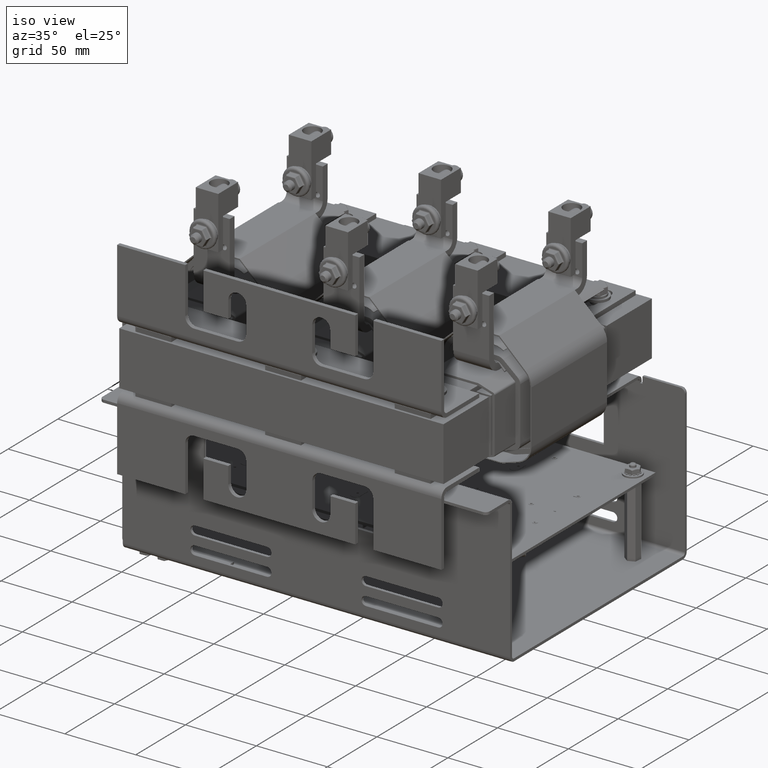
[diagram: clean part render]
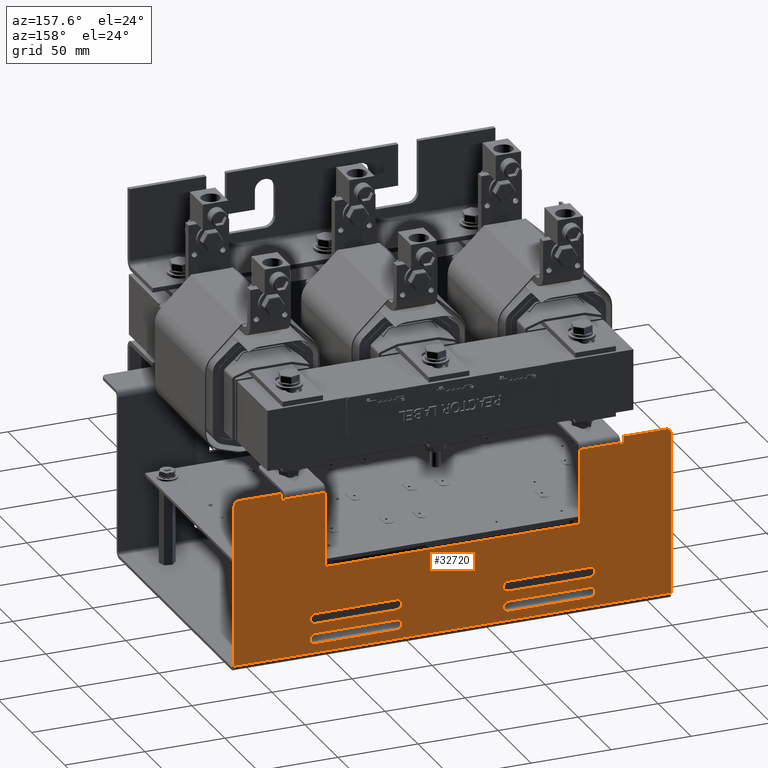
[diagram: tour spotlight — one face highlighted and labeled with its STEP entity id]
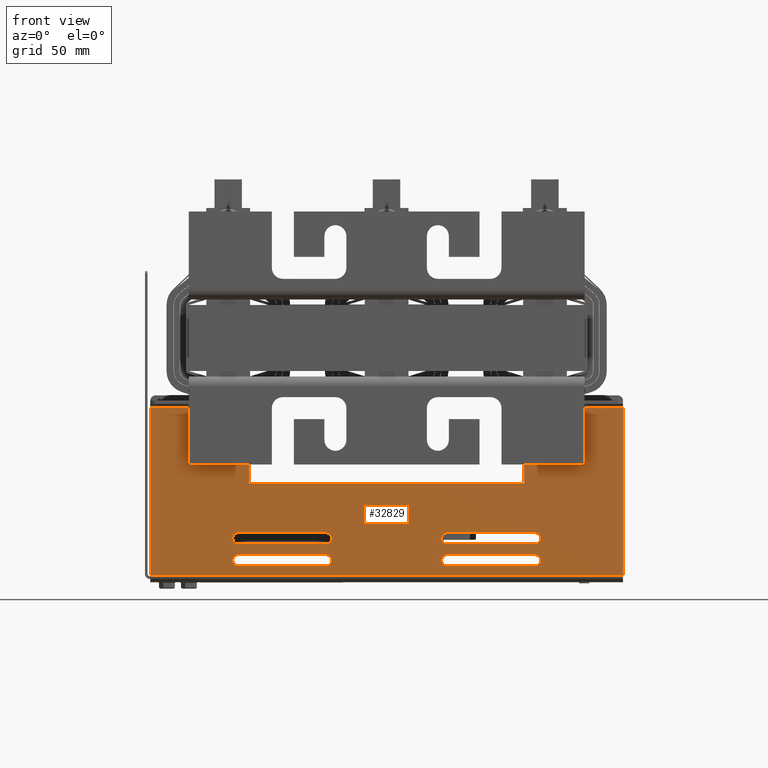
[diagram: tour spotlight — one face highlighted and labeled with its STEP entity id]
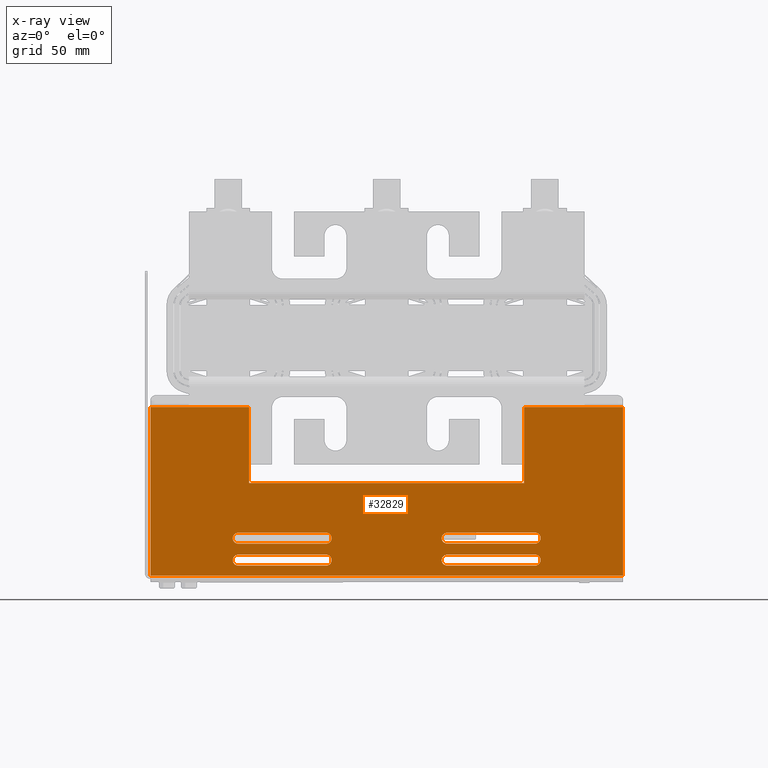
[diagram: x-ray of the same camera — body ghosted, this tour face saturated]
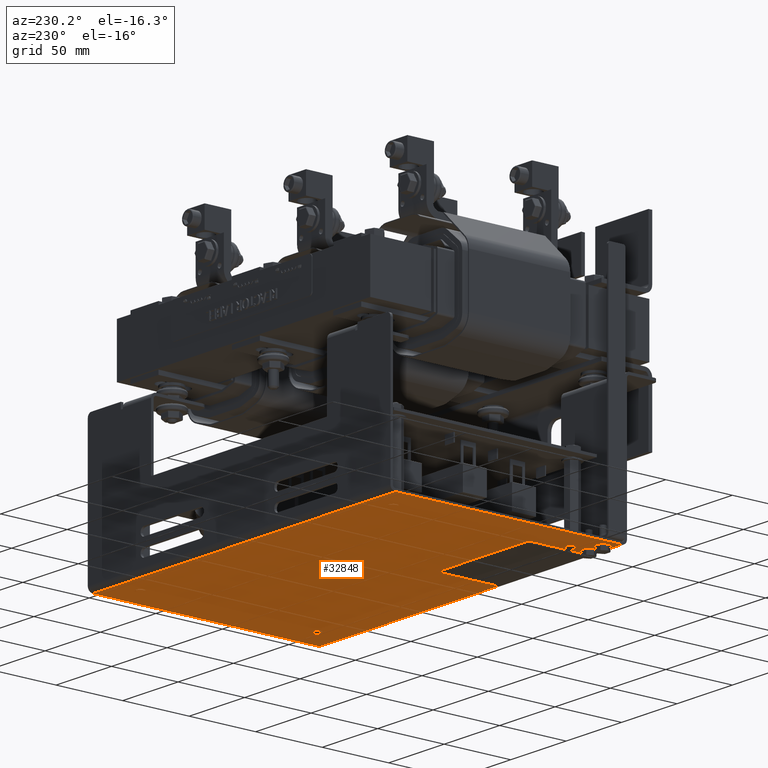
[diagram: tour spotlight — one face highlighted and labeled with its STEP entity id]
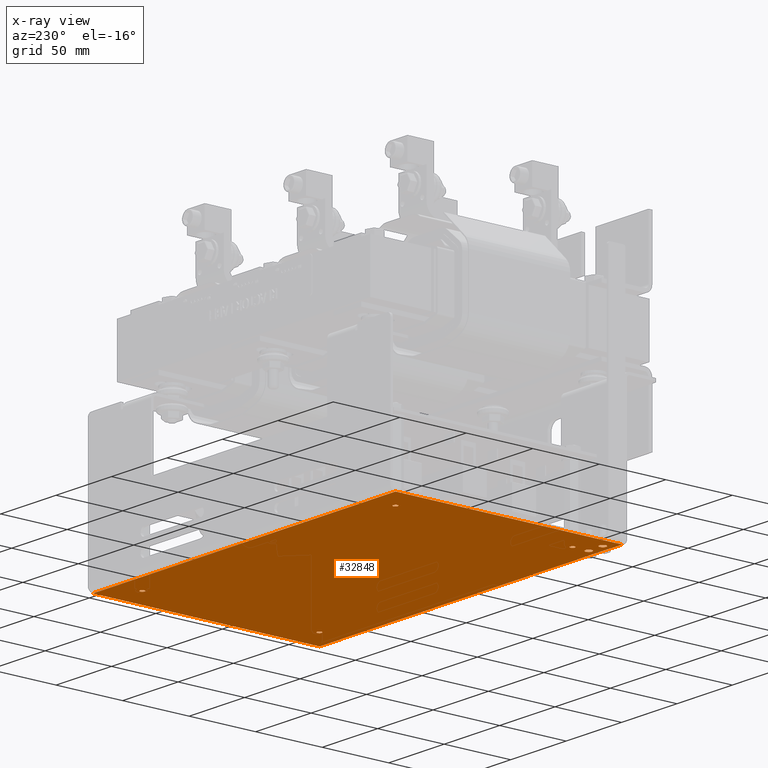
[diagram: x-ray of the same camera — body ghosted, this tour face saturated]
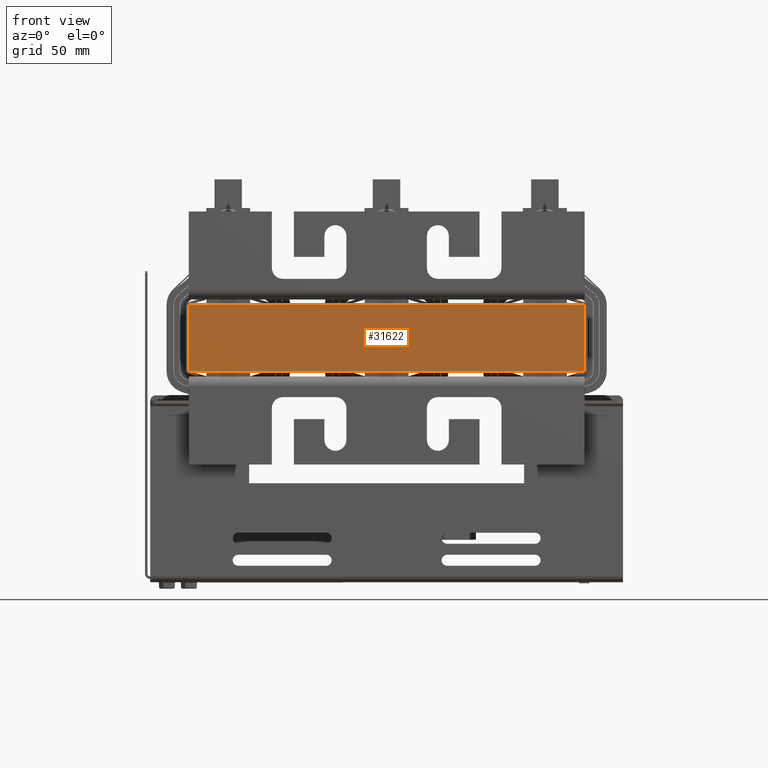
[diagram: tour spotlight — one face highlighted and labeled with its STEP entity id]
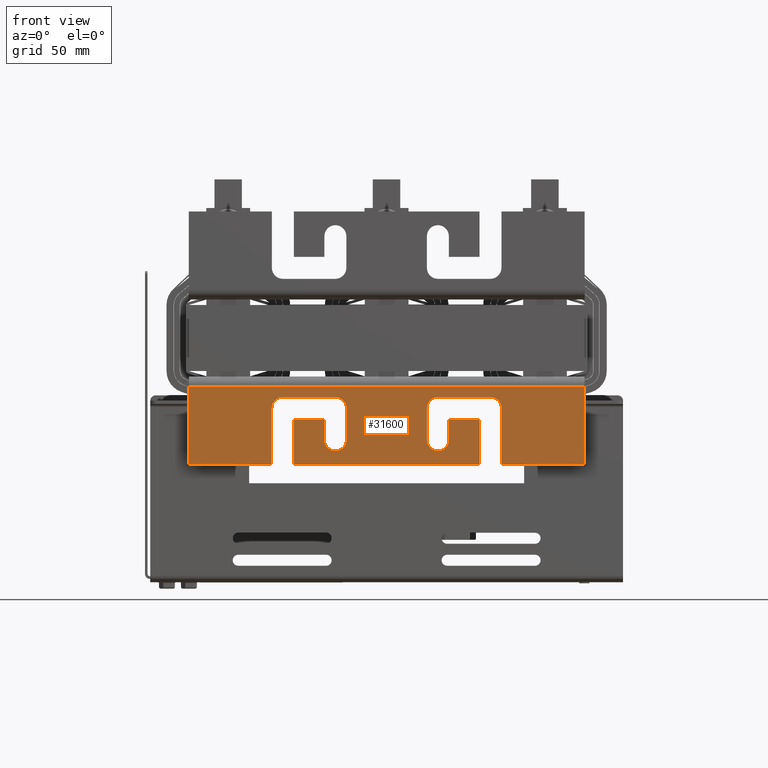
[diagram: tour spotlight — one face highlighted and labeled with its STEP entity id]
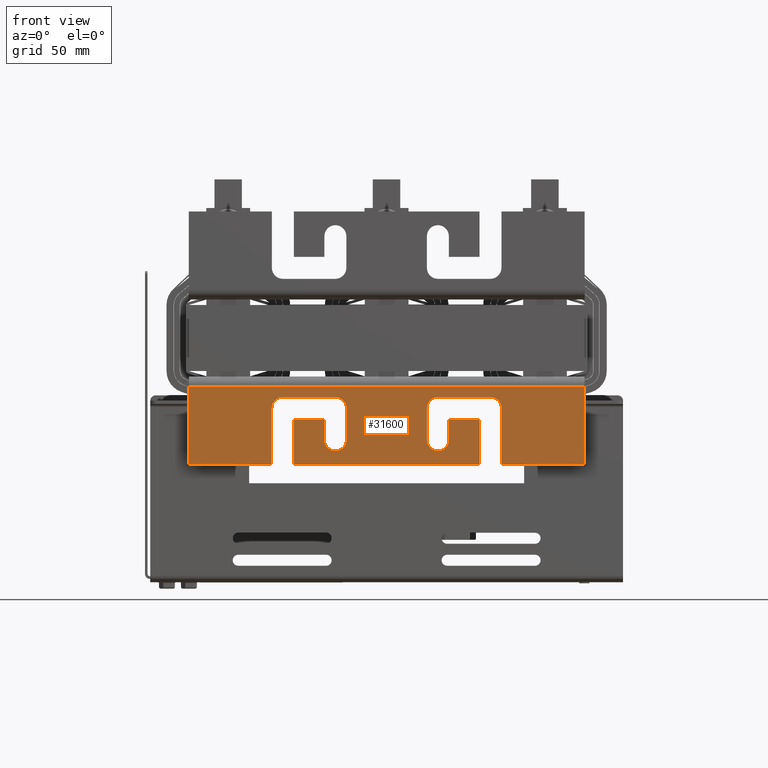
[diagram: tour spotlight — one face highlighted and labeled with its STEP entity id]
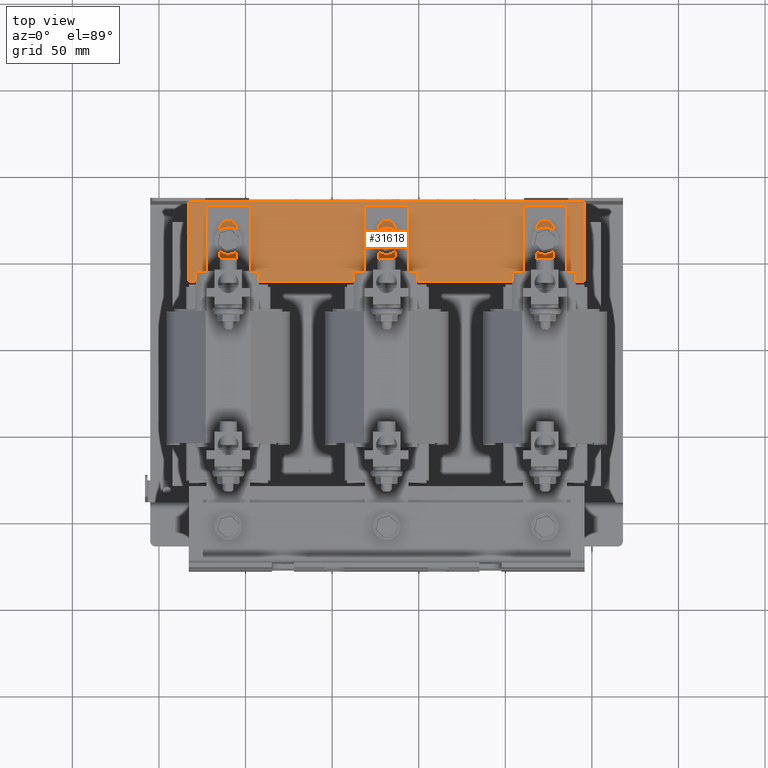
[diagram: tour spotlight — one face highlighted and labeled with its STEP entity id]
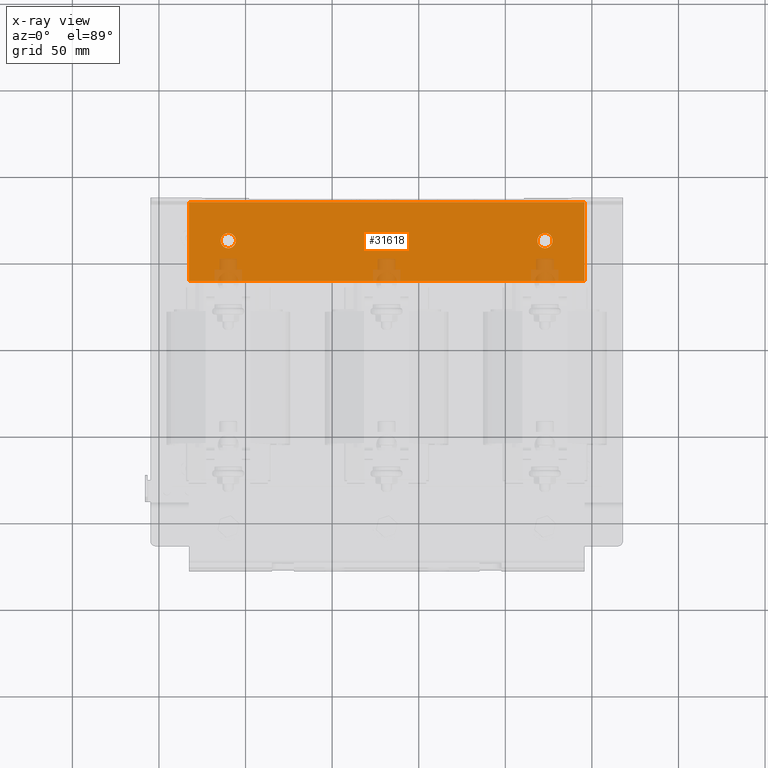
[diagram: x-ray of the same camera — body ghosted, this tour face saturated]
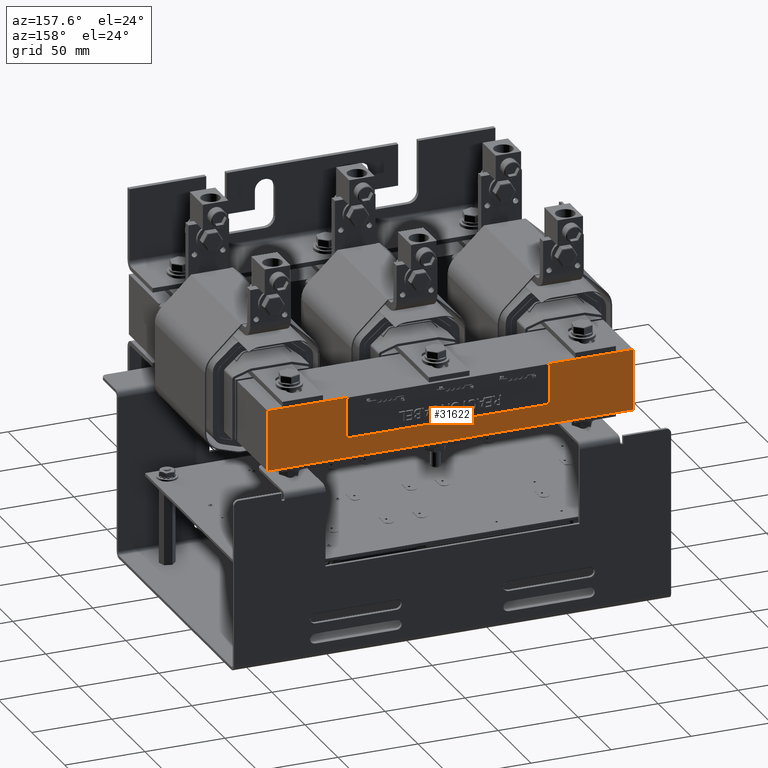
[diagram: tour spotlight — one face highlighted and labeled with its STEP entity id]
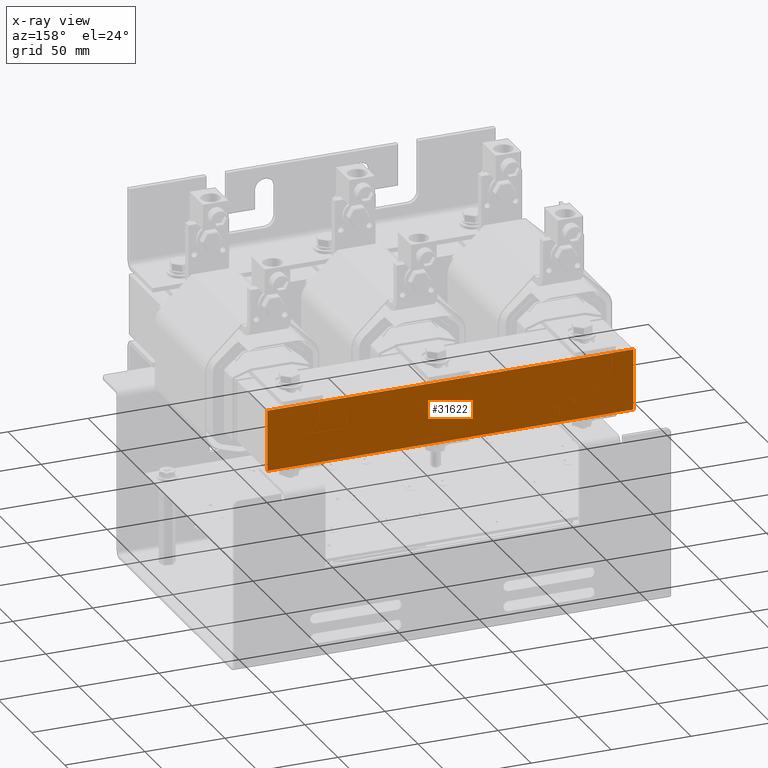
[diagram: x-ray of the same camera — body ghosted, this tour face saturated]
A machine part: a face-by-face anatomy tour. The part has 4435 B-rep faces; the first image is the clean iso view, then the 8 largest visible faces are spotlighted one at a time (largest first), each with its STEP entity span.

Face 1 — auxiliary view, entity #32720. In plain terms, the highlighted planar face has unit normal (-0, -1, -0).
Definition (entity closure, byte-faithful):
#1804=FACE_BOUND('',#6677,.T.);
#1805=FACE_BOUND('',#6678,.T.);
#1806=FACE_BOUND('',#6679,.T.);
#1807=FACE_BOUND('',#6680,.T.);
#2547=CIRCLE('',#35821,0.125);
#2557=CIRCLE('',#35834,0.125);
#2558=CIRCLE('',#35837,0.125);
#2559=CIRCLE('',#35838,0.125);
#2560=CIRCLE('',#35839,0.125);
#2561=CIRCLE('',#35840,0.125);
#2562=CIRCLE('',#35841,0.125);
#2563=CIRCLE('',#35842,0.125);
#2564=CIRCLE('',#35843,0.125);
#2565=CIRCLE('',#35844,0.125);
#4791=FACE_OUTER_BOUND('',#6676,.T.);
#6676=EDGE_LOOP('',(#27455,#27456,#27457,#27458,#27459,#27460,#27461,#27462,
#27463,#27464,#27465,#27466,#27467,#27468,#27469,#27470,#27471,#27472));
#6677=EDGE_LOOP('',(#27473,#27474,#27475,#27476));
#6678=EDGE_LOOP('',(#27477,#27478,#27479,#27480));
#6679=EDGE_LOOP('',(#27481,#27482,#27483,#27484));
#6680=EDGE_LOOP('',(#27485,#27486,#27487,#27488));
#9583=LINE('',#55222,#12673);
#9609=LINE('',#55295,#12699);
#9611=LINE('',#55298,#12701);
#9612=LINE('',#55300,#12702);
#9613=LINE('',#55302,#12703);
#9614=LINE('',#55304,#12704);
#9615=LINE('',#55306,#12705);
#9616=LINE('',#55308,#12706);
#9617=LINE('',#55310,#12707);
#9618=LINE('',#55312,#12708);
#9619=LINE('',#55314,#12709);
#9620=LINE('',#55316,#12710);
#9621=LINE('',#55318,#12711);
#9622=LINE('',#55320,#12712);
#9623=LINE('',#55322,#12713);
#9624=LINE('',#55323,#12714);
#9625=LINE('',#55326,#12715);
#9626=LINE('',#55330,#12716);
#9627=LINE('',#55336,#12717);
#9628=LINE('',#55339,#12718);
#9629=LINE('',#55344,#12719);
#9630=LINE('',#55347,#12720);
#9631=LINE('',#55352,#12721);
#9632=LINE('',#55355,#12722);
#12673=VECTOR('',#42546,0.393700787401575);
#12699=VECTOR('',#42598,0.393700787401575);
#12701=VECTOR('',#42602,0.393700787401575);
#12702=VECTOR('',#42603,0.393700787401575);
#12703=VECTOR('',#42604,0.393700787401575);
#12704=VECTOR('',#42605,0.393700787401575);
#12705=VECTOR('',#42606,0.393700787401575);
#12706=VECTOR('',#42607,0.393700787401575);
#12707=VECTOR('',#42608,0.393700787401575);
#12708=VECTOR('',#42609,0.393700787401575);
#12709=VECTOR('',#42610,0.393700787401575);
#12710=VECTOR('',#42611,0.393700787401575);
#12711=VECTOR('',#42612,0.393700787401575);
#12712=VECTOR('',#42613,0.393700787401575);
#12713=VECTOR('',#42614,0.393700787401575);
#12714=VECTOR('',#42615,0.393700787401575);
#12715=VECTOR('',#42616,0.393700787401575);
#12716=VECTOR('',#42619,0.393700787401575);
#12717=VECTOR('',#42624,0.393700787401575);
#12718=VECTOR('',#42627,0.393700787401575);
#12719=VECTOR('',#42630,0.393700787401575);
#12720=VECTOR('',#42633,0.393700787401575);
#12721=VECTOR('',#42636,0.393700787401575);
#12722=VECTOR('',#42639,0.393700787401575);
#15671=VERTEX_POINT('',#55212);
#15672=VERTEX_POINT('',#55214);
#15674=VERTEX_POINT('',#55220);
#15706=VERTEX_POINT('',#55288);
#15707=VERTEX_POINT('',#55290);
#15708=VERTEX_POINT('',#55294);
#15709=VERTEX_POINT('',#55299);
#15710=VERTEX_POINT('',#55301);
#15711=VERTEX_POINT('',#55303);
#15712=VERTEX_POINT('',#55305);
#15713=VERTEX_POINT('',#55307);
#15714=VERTEX_POINT('',#55309);
#15715=VERTEX_POINT('',#55311);
#15716=VERTEX_POINT('',#55313);
#15717=VERTEX_POINT('',#55315);
#15718=VERTEX_POINT('',#55317);
#15719=VERTEX_POINT('',#55319);
#15720=VERTEX_POINT('',#55321);
#15721=VERTEX_POINT('',#55324);
#15722=VERTEX_POINT('',#55325);
#15723=VERTEX_POINT('',#55327);
#15724=VERTEX_POINT('',#55329);
#15725=VERTEX_POINT('',#55332);
#15726=VERTEX_POINT('',#55333);
#15727=VERTEX_POINT('',#55335);
#15728=VERTEX_POINT('',#55337);
#15729=VERTEX_POINT('',#55340);
#15730=VERTEX_POINT('',#55341);
#15731=VERTEX_POINT('',#55343);
#15732=VERTEX_POINT('',#55345);
#15733=VERTEX_POINT('',#55348);
#15734=VERTEX_POINT('',#55349);
#15735=VERTEX_POINT('',#55351);
#15736=VERTEX_POINT('',#55353);
#19733=EDGE_CURVE('',#15671,#15672,#2547,.T.);
#19737=EDGE_CURVE('',#15674,#15671,#9583,.T.);
#19771=EDGE_CURVE('',#15706,#15707,#2557,.T.);
#19773=EDGE_CURVE('',#15708,#15707,#9609,.T.);
#19775=EDGE_CURVE('',#15674,#15708,#9611,.T.);
#19776=EDGE_CURVE('',#15706,#15709,#9612,.T.);
#19777=EDGE_CURVE('',#15709,#15710,#9613,.T.);
#19778=EDGE_CURVE('',#15710,#15711,#9614,.T.);
#19779=EDGE_CURVE('',#15711,#15712,#9615,.T.);
#19780=EDGE_CURVE('',#15712,#15713,#9616,.T.);
#19781=EDGE_CURVE('',#15713,#15714,#9617,.T.);
#19782=EDGE_CURVE('',#15714,#15715,#9618,.T.);
#19783=EDGE_CURVE('',#15715,#15716,#9619,.T.);
#19784=EDGE_CURVE('',#15716,#15717,#9620,.T.);
#19785=EDGE_CURVE('',#15717,#15718,#9621,.T.);
#19786=EDGE_CURVE('',#15718,#15719,#9622,.T.);
#19787=EDGE_CURVE('',#15719,#15720,#9623,.T.);
#19788=EDGE_CURVE('',#15720,#15672,#9624,.T.);
#19789=EDGE_CURVE('',#15721,#15722,#9625,.T.);
#19790=EDGE_CURVE('',#15722,#15723,#2558,.T.);
#19791=EDGE_CURVE('',#15723,#15724,#9626,.T.);
#19792=EDGE_CURVE('',#15724,#15721,#2559,.T.);
#19793=EDGE_CURVE('',#15725,#15726,#2560,.T.);
#19794=EDGE_CURVE('',#15726,#15727,#9627,.T.);
#19795=EDGE_CURVE('',#15727,#15728,#2561,.T.);
#19796=EDGE_CURVE('',#15728,#15725,#9628,.T.);
#19797=EDGE_CURVE('',#15729,#15730,#2562,.T.);
#19798=EDGE_CURVE('',#15730,#15731,#9629,.T.);
#19799=EDGE_CURVE('',#15731,#15732,#2563,.T.);
#19800=EDGE_CURVE('',#15732,#15729,#9630,.T.);
#19801=EDGE_CURVE('',#15733,#15734,#2564,.T.);
#19802=EDGE_CURVE('',#15734,#15735,#9631,.T.);
#19803=EDGE_CURVE('',#15735,#15736,#2565,.T.);
#19804=EDGE_CURVE('',#15736,#15733,#9632,.T.);
#27455=ORIENTED_EDGE('',*,*,#19733,.F.);
#27456=ORIENTED_EDGE('',*,*,#19737,.F.);
#27457=ORIENTED_EDGE('',*,*,#19775,.T.);
#27458=ORIENTED_EDGE('',*,*,#19773,.T.);
#27459=ORIENTED_EDGE('',*,*,#19771,.F.);
#27460=ORIENTED_EDGE('',*,*,#19776,.T.);
#27461=ORIENTED_EDGE('',*,*,#19777,.T.);
#27462=ORIENTED_EDGE('',*,*,#19778,.T.);
#27463=ORIENTED_EDGE('',*,*,#19779,.T.);
#27464=ORIENTED_EDGE('',*,*,#19780,.T.);
#27465=ORIENTED_EDGE('',*,*,#19781,.T.);
#27466=ORIENTED_EDGE('',*,*,#19782,.T.);
#27467=ORIENTED_EDGE('',*,*,#19783,.T.);
#27468=ORIENTED_EDGE('',*,*,#19784,.T.);
#27469=ORIENTED_EDGE('',*,*,#19785,.T.);
#27470=ORIENTED_EDGE('',*,*,#19786,.T.);
#27471=ORIENTED_EDGE('',*,*,#19787,.T.);
#27472=ORIENTED_EDGE('',*,*,#19788,.T.);
#27473=ORIENTED_EDGE('',*,*,#19789,.T.);
#27474=ORIENTED_EDGE('',*,*,#19790,.T.);
#27475=ORIENTED_EDGE('',*,*,#19791,.T.);
#27476=ORIENTED_EDGE('',*,*,#19792,.T.);
#27477=ORIENTED_EDGE('',*,*,#19793,.T.);
#27478=ORIENTED_EDGE('',*,*,#19794,.T.);
#27479=ORIENTED_EDGE('',*,*,#19795,.T.);
#27480=ORIENTED_EDGE('',*,*,#19796,.T.);
#27481=ORIENTED_EDGE('',*,*,#19797,.T.);
#27482=ORIENTED_EDGE('',*,*,#19798,.T.);
#27483=ORIENTED_EDGE('',*,*,#19799,.T.);
#27484=ORIENTED_EDGE('',*,*,#19800,.T.);
#27485=ORIENTED_EDGE('',*,*,#19801,.T.);
#27486=ORIENTED_EDGE('',*,*,#19802,.T.);
#27487=ORIENTED_EDGE('',*,*,#19803,.T.);
#27488=ORIENTED_EDGE('',*,*,#19804,.T.);
#31212=PLANE('',#35836);
#32720=ADVANCED_FACE('',(#4791,#1804,#1805,#1806,#1807),#31212,.F.);
#35821=AXIS2_PLACEMENT_3D('',#55215,#42539,#42540);
#35834=AXIS2_PLACEMENT_3D('',#55291,#42593,#42594);
#35836=AXIS2_PLACEMENT_3D('',#55297,#42600,#42601);
#35837=AXIS2_PLACEMENT_3D('',#55328,#42617,#42618);
#35838=AXIS2_PLACEMENT_3D('',#55331,#42620,#42621);
#35839=AXIS2_PLACEMENT_3D('',#55334,#42622,#42623);
#35840=AXIS2_PLACEMENT_3D('',#55338,#42625,#42626);
#35841=AXIS2_PLACEMENT_3D('',#55342,#42628,#42629);
#35842=AXIS2_PLACEMENT_3D('',#55346,#42631,#42632);
#35843=AXIS2_PLACEMENT_3D('',#55350,#42634,#42635);
#35844=AXIS2_PLACEMENT_3D('',#55354,#42637,#42638);
#42539=DIRECTION('center_axis',(-5.6703326251689E-19,-1.,-8.8564056095224E-15));
#42540=DIRECTION('ref_axis',(0.707106781186551,-1.58245539142931E-14,0.707106781186544));
#42546=DIRECTION('',(1.30112202116848E-16,-8.88178419700125E-15,1.));
#42593=DIRECTION('center_axis',(-5.6703326251689E-19,-1.,-8.8564056095224E-15));
#42594=DIRECTION('ref_axis',(-0.707106781186549,-1.58245539142932E-14,0.707106781186546));
#42598=DIRECTION('',(-1.66709719571992E-14,-8.88178419700126E-15,1.));
#42600=DIRECTION('center_axis',(-5.6703326251689E-19,-1.,-8.8564056095224E-15));
#42601=DIRECTION('ref_axis',(1.,-5.67033262515731E-19,-1.30112202116848E-16));
#42602=DIRECTION('',(-1.,5.6703326251689E-19,1.15266297230252E-30));
#42603=DIRECTION('',(1.,1.15863945454336E-30,-1.30112202116848E-16));
#42604=DIRECTION('',(0.,8.8564056095224E-15,-1.));
#42605=DIRECTION('',(1.,-5.6703326251689E-19,-5.30865411272029E-33));
#42606=DIRECTION('',(0.,-8.8564056095224E-15,1.));
#42607=DIRECTION('',(1.,-5.6703326251689E-19,-5.30865411272029E-33));
#42608=DIRECTION('',(3.49676543189026E-16,8.8564056095224E-15,-1.));
#42609=DIRECTION('',(1.,-5.67033262517881E-19,1.11896493820488E-16));
#42610=DIRECTION('',(8.5944172051029E-49,-8.8564056095224E-15,1.));
#42611=DIRECTION('',(1.,-5.6703326251689E-19,-1.31002146628546E-29));
#42612=DIRECTION('',(0.,8.8564056095224E-15,-1.));
#42613=DIRECTION('',(1.,-5.6703326251689E-19,-5.30865411272029E-33));
#42614=DIRECTION('',(0.,-8.8564056095224E-15,1.));
#42615=DIRECTION('',(1.,1.15863945454336E-30,-1.30112202116848E-16));
#42616=DIRECTION('',(-1.,5.67033262517106E-19,-2.44773580232318E-17));
#42617=DIRECTION('center_axis',(-5.6703326251689E-19,-1.,-8.8564056095224E-15));
#42618=DIRECTION('ref_axis',(-1.11896493820488E-16,-8.85372494836339E-15,
1.));
#42619=DIRECTION('',(1.,-5.67033262509364E-19,-8.49713999949332E-16));
#42620=DIRECTION('center_axis',(-5.6703326251689E-19,-1.,-8.8564056095224E-15));
#42621=DIRECTION('ref_axis',(1.11896493820488E-16,8.85372494836339E-15,
-1.));
#42622=DIRECTION('center_axis',(-5.6703326251689E-19,-1.,-8.8564056095224E-15));
#42623=DIRECTION('ref_axis',(-1.11896493820488E-16,-8.85372494836339E-15,
1.));
#42624=DIRECTION('',(1.,-5.67033262517106E-19,2.44773580232318E-17));
#42625=DIRECTION('center_axis',(-5.6703326251689E-19,-1.,-8.8564056095224E-15));
#42626=DIRECTION('ref_axis',(1.11896493820488E-16,8.85372494836339E-15,
-1.));
#42627=DIRECTION('',(-1.,5.67033262515558E-19,1.50360913571281E-16));
#42628=DIRECTION('center_axis',(-5.6703326251689E-19,-1.,-8.8564056095224E-15));
#42629=DIRECTION('ref_axis',(-1.11896493820488E-16,-8.8574017444383E-15,
1.));
#42630=DIRECTION('',(1.,-5.67033262517881E-19,1.11896493820488E-16));
#42631=DIRECTION('center_axis',(-5.6703326251689E-19,-1.,-8.8564056095224E-15));
#42632=DIRECTION('ref_axis',(1.11896493820488E-16,8.8574017444383E-15,-1.));
#42633=DIRECTION('',(-1.,5.67033262517881E-19,-1.11896493820488E-16));
#42634=DIRECTION('center_axis',(-5.6703326251689E-19,-1.,-8.8564056095224E-15));
#42635=DIRECTION('ref_axis',(-1.11896493820488E-16,-8.8574017444383E-15,
1.));
#42636=DIRECTION('',(1.,-5.67033262516332E-19,-6.29417777740246E-17));
#42637=DIRECTION('center_axis',(-5.6703326251689E-19,-1.,-8.8564056095224E-15));
#42638=DIRECTION('ref_axis',(1.11896493820488E-16,8.8574017444383E-15,-1.));
#42639=DIRECTION('',(-1.,5.67033262514784E-19,2.37780049368538E-16));
#55212=CARTESIAN_POINT('',(10.75,6.99999999999997,4.125));
#55214=CARTESIAN_POINT('',(10.625,6.99999999999996,4.25));
#55215=CARTESIAN_POINT('Origin',(10.625,6.99999999999997,4.125));
#55220=CARTESIAN_POINT('',(10.75,7.,0.1494));
#55222=CARTESIAN_POINT('',(10.75,7.,-0.019567419280674));
#55288=CARTESIAN_POINT('',(0.124999999999995,6.99999999999996,4.25));
#55290=CARTESIAN_POINT('',(-7.16799472386219E-14,6.99999999999997,4.125));
#55291=CARTESIAN_POINT('Origin',(0.124999999999995,6.99999999999996,4.125));
#55294=CARTESIAN_POINT('',(-5.40283112558079E-15,7.,0.149400000000002));
#55295=CARTESIAN_POINT('',(-2.58598001707232E-15,7.,-0.0195674192806754));
#55297=CARTESIAN_POINT('Origin',(5.375,6.99999999999998,2.11521629035966));
#55298=CARTESIAN_POINT('',(5.375,7.,0.149400000000002));
#55299=CARTESIAN_POINT('',(1.17529999999999,6.99999999999996,4.25));
#55300=CARTESIAN_POINT('',(-2.39144049161635E-15,6.99999999999996,4.25));
#55301=CARTESIAN_POINT('',(1.17529999999999,6.99999999999996,4.06325));
#55302=CARTESIAN_POINT('',(1.17529999999999,6.99999999999997,3.08923314517983));
#55303=CARTESIAN_POINT('',(1.24999999999999,6.99999999999996,4.06325));
#55304=CARTESIAN_POINT('',(3.3125,6.99999999999997,4.06325));
#55305=CARTESIAN_POINT('',(1.24999999999999,6.99999999999996,4.1006));
#55306=CARTESIAN_POINT('',(1.24999999999999,6.99999999999997,3.11260814517983));
#55307=CARTESIAN_POINT('',(2.25,6.99999999999996,4.1006));
#55308=CARTESIAN_POINT('',(3.8125,6.99999999999996,4.1006));
#55309=CARTESIAN_POINT('',(2.25,6.99999999999998,2.25));
#55310=CARTESIAN_POINT('',(2.25,6.99999999999998,2.18260814517986));
#55311=CARTESIAN_POINT('',(8.5,6.99999999999998,2.25));
#55312=CARTESIAN_POINT('',(6.9375,6.99999999999998,2.25));
#55313=CARTESIAN_POINT('',(8.5,6.99999999999996,4.1006));
#55314=CARTESIAN_POINT('',(8.5,6.99999999999997,3.18260814517986));
#55315=CARTESIAN_POINT('',(9.5,6.99999999999997,4.1006));
#55316=CARTESIAN_POINT('',(7.4375,6.99999999999996,4.1006));
#55317=CARTESIAN_POINT('',(9.5,6.99999999999997,4.06325));
#55318=CARTESIAN_POINT('',(9.5,6.99999999999997,3.08923314517983));
#55319=CARTESIAN_POINT('',(9.5747,6.99999999999997,4.06325));
#55320=CARTESIAN_POINT('',(7.47485,6.99999999999997,4.06325));
#55321=CARTESIAN_POINT('',(9.5747,6.99999999999996,4.25));
#55322=CARTESIAN_POINT('',(9.5747,6.99999999999997,3.11260814517983));
#55323=CARTESIAN_POINT('',(-2.39144049161635E-15,6.99999999999996,4.25));
#55324=CARTESIAN_POINT('',(8.75,6.99999999999999,1.125));
#55325=CARTESIAN_POINT('',(6.75,6.99999999999999,1.125));
#55326=CARTESIAN_POINT('',(7.0625,6.99999999999999,1.125));
#55327=CARTESIAN_POINT('',(6.75,6.99999999999999,0.875000000000001));
#55328=CARTESIAN_POINT('Origin',(6.75,6.99999999999999,1.));
#55329=CARTESIAN_POINT('',(8.75,6.99999999999999,0.874999999999999));
#55330=CARTESIAN_POINT('',(6.0625,6.99999999999999,0.875000000000001));
#55331=CARTESIAN_POINT('Origin',(8.75,6.99999999999999,1.));
#55332=CARTESIAN_POINT('',(2.00002098429182,6.99999999999999,1.12499999955966));
#55333=CARTESIAN_POINT('',(2.00002098429182,6.99999999999999,0.87499999955966));
#55334=CARTESIAN_POINT('Origin',(2.00002098429182,6.99999999999999,0.99999999955966));
#55335=CARTESIAN_POINT('',(4.00002098429182,6.99999999999999,0.87499999955966));
#55336=CARTESIAN_POINT('',(3.68751049214591,6.99999999999999,0.87499999955966));
#55337=CARTESIAN_POINT('',(4.00002098429182,6.99999999999999,1.12499999955966));
#55338=CARTESIAN_POINT('Origin',(4.00002098429182,6.99999999999999,0.99999999955966));
#55339=CARTESIAN_POINT('',(4.68751049214591,6.99999999999999,1.12499999955966));
#55340=CARTESIAN_POINT('',(1.99999999999999,7.,0.625));
#55341=CARTESIAN_POINT('',(2.,7.,0.375));
#55342=CARTESIAN_POINT('Origin',(1.99999999999999,7.,0.5));
#55343=CARTESIAN_POINT('',(4.,7.,0.375000000000001));
#55344=CARTESIAN_POINT('',(3.6875,7.,0.375));
#55345=CARTESIAN_POINT('',(4.,7.,0.625));
#55346=CARTESIAN_POINT('Origin',(4.,7.,0.500000000000001));
#55347=CARTESIAN_POINT('',(4.6875,7.,0.625000000000001));
#55348=CARTESIAN_POINT('',(6.75,7.,0.625000000000001));
#55349=CARTESIAN_POINT('',(6.75,7.,0.375000000000001));
#55350=CARTESIAN_POINT('Origin',(6.75,7.,0.500000000000001));
#55351=CARTESIAN_POINT('',(8.75,7.,0.375000000000001));
#55352=CARTESIAN_POINT('',(6.0625,7.,0.375000000000001));
#55353=CARTESIAN_POINT('',(8.75,7.,0.625));
#55354=CARTESIAN_POINT('Origin',(8.75,7.,0.500000000000001));
#55355=CARTESIAN_POINT('',(7.0625,7.,0.625000000000001));

Face 2 — front view, entity #32829. An x-ray twin of the same camera follows (body ghosted, this face saturated) — the face is partly hidden behind the body. In plain terms, the highlighted planar face has unit normal (0, 1, -0).
Definition (entity closure, byte-faithful):
#1812=FACE_BOUND('',#6794,.T.);
#1813=FACE_BOUND('',#6795,.T.);
#1814=FACE_BOUND('',#6796,.T.);
#1815=FACE_BOUND('',#6797,.T.);
#2587=CIRCLE('',#35887,0.125);
#2589=CIRCLE('',#35894,0.125);
#2591=CIRCLE('',#35899,0.125);
#2593=CIRCLE('',#35906,0.125);
#2595=CIRCLE('',#35911,0.125);
#2597=CIRCLE('',#35918,0.125);
#2599=CIRCLE('',#35925,0.125);
#2601=CIRCLE('',#35928,0.125);
#4900=FACE_OUTER_BOUND('',#6793,.T.);
#6793=EDGE_LOOP('',(#27995,#27996,#27997,#27998,#27999,#28000,#28001,#28002));
#6794=EDGE_LOOP('',(#28003,#28004,#28005,#28006));
#6795=EDGE_LOOP('',(#28007,#28008,#28009,#28010));
#6796=EDGE_LOOP('',(#28011,#28012,#28013,#28014));
#6797=EDGE_LOOP('',(#28015,#28016,#28017,#28018));
#9698=LINE('',#55536,#12788);
#9702=LINE('',#55543,#12792);
#9710=LINE('',#55568,#12800);
#9714=LINE('',#55575,#12804);
#9722=LINE('',#55600,#12812);
#9726=LINE('',#55607,#12816);
#9731=LINE('',#55623,#12821);
#9739=LINE('',#55644,#12829);
#9796=LINE('',#55824,#12886);
#9801=LINE('',#55842,#12891);
#9808=LINE('',#55856,#12898);
#9810=LINE('',#55860,#12900);
#9811=LINE('',#55862,#12901);
#9812=LINE('',#55863,#12902);
#9813=LINE('',#55865,#12903);
#9814=LINE('',#55866,#12904);
#12788=VECTOR('',#42795,0.393700787401575);
#12792=VECTOR('',#42801,0.393700787401575);
#12800=VECTOR('',#42831,0.393700787401575);
#12804=VECTOR('',#42837,0.393700787401575);
#12812=VECTOR('',#42867,0.393700787401575);
#12816=VECTOR('',#42873,0.393700787401575);
#12821=VECTOR('',#42892,0.393700787401575);
#12829=VECTOR('',#42918,0.393700787401575);
#12886=VECTOR('',#43145,0.393700787401575);
#12891=VECTOR('',#43168,0.393700787401575);
#12898=VECTOR('',#43179,0.393700787401575);
#12900=VECTOR('',#43183,0.393700787401575);
#12901=VECTOR('',#43184,0.393700787401575);
#12902=VECTOR('',#43185,0.393700787401575);
#12903=VECTOR('',#43186,0.393700787401575);
#12904=VECTOR('',#43187,0.393700787401575);
#15803=VERTEX_POINT('',#55524);
#15804=VERTEX_POINT('',#55526);
#15806=VERTEX_POINT('',#55535);
#15808=VERTEX_POINT('',#55541);
#15811=VERTEX_POINT('',#55556);
#15812=VERTEX_POINT('',#55558);
#15814=VERTEX_POINT('',#55567);
#15816=VERTEX_POINT('',#55573);
#15819=VERTEX_POINT('',#55588);
#15820=VERTEX_POINT('',#55590);
#15822=VERTEX_POINT('',#55599);
#15824=VERTEX_POINT('',#55605);
#15827=VERTEX_POINT('',#55620);
#15828=VERTEX_POINT('',#55622);
#15830=VERTEX_POINT('',#55631);
#15832=VERTEX_POINT('',#55637);
#15869=VERTEX_POINT('',#55815);
#15870=VERTEX_POINT('',#55819);
#15873=VERTEX_POINT('',#55833);
#15874=VERTEX_POINT('',#55837);
#15879=VERTEX_POINT('',#55855);
#15880=VERTEX_POINT('',#55859);
#15881=VERTEX_POINT('',#55861);
#15882=VERTEX_POINT('',#55864);
#19887=EDGE_CURVE('',#15804,#15803,#2587,.T.);
#19892=EDGE_CURVE('',#15806,#15804,#9698,.T.);
#19896=EDGE_CURVE('',#15803,#15808,#9702,.T.);
#19899=EDGE_CURVE('',#15808,#15806,#2589,.T.);
#19903=EDGE_CURVE('',#15812,#15811,#2591,.T.);
#19908=EDGE_CURVE('',#15814,#15812,#9710,.T.);
#19912=EDGE_CURVE('',#15811,#15816,#9714,.T.);
#19915=EDGE_CURVE('',#15816,#15814,#2593,.T.);
#19919=EDGE_CURVE('',#15820,#15819,#2595,.T.);
#19924=EDGE_CURVE('',#15822,#15820,#9722,.T.);
#19928=EDGE_CURVE('',#15819,#15824,#9726,.T.);
#19931=EDGE_CURVE('',#15824,#15822,#2597,.T.);
#19935=EDGE_CURVE('',#15828,#15827,#9731,.T.);
#19940=EDGE_CURVE('',#15830,#15828,#2599,.T.);
#19944=EDGE_CURVE('',#15827,#15832,#2601,.T.);
#19947=EDGE_CURVE('',#15832,#15830,#9739,.T.);
#20038=EDGE_CURVE('',#15869,#15870,#9796,.T.);
#20047=EDGE_CURVE('',#15873,#15874,#9801,.T.);
#20054=EDGE_CURVE('',#15879,#15869,#9808,.T.);
#20056=EDGE_CURVE('',#15880,#15870,#9810,.T.);
#20057=EDGE_CURVE('',#15880,#15881,#9811,.T.);
#20058=EDGE_CURVE('',#15881,#15873,#9812,.T.);
#20059=EDGE_CURVE('',#15874,#15882,#9813,.T.);
#20060=EDGE_CURVE('',#15882,#15879,#9814,.T.);
#27995=ORIENTED_EDGE('',*,*,#20038,.T.);
#27996=ORIENTED_EDGE('',*,*,#20056,.F.);
#27997=ORIENTED_EDGE('',*,*,#20057,.T.);
#27998=ORIENTED_EDGE('',*,*,#20058,.T.);
#27999=ORIENTED_EDGE('',*,*,#20047,.T.);
#28000=ORIENTED_EDGE('',*,*,#20059,.T.);
#28001=ORIENTED_EDGE('',*,*,#20060,.T.);
#28002=ORIENTED_EDGE('',*,*,#20054,.T.);
#28003=ORIENTED_EDGE('',*,*,#19899,.T.);
#28004=ORIENTED_EDGE('',*,*,#19892,.T.);
#28005=ORIENTED_EDGE('',*,*,#19887,.T.);
#28006=ORIENTED_EDGE('',*,*,#19896,.T.);
#28007=ORIENTED_EDGE('',*,*,#19915,.T.);
#28008=ORIENTED_EDGE('',*,*,#19908,.T.);
#28009=ORIENTED_EDGE('',*,*,#19903,.T.);
#28010=ORIENTED_EDGE('',*,*,#19912,.T.);
#28011=ORIENTED_EDGE('',*,*,#19931,.T.);
#28012=ORIENTED_EDGE('',*,*,#19924,.T.);
#28013=ORIENTED_EDGE('',*,*,#19919,.T.);
#28014=ORIENTED_EDGE('',*,*,#19928,.T.);
#28015=ORIENTED_EDGE('',*,*,#19947,.T.);
#28016=ORIENTED_EDGE('',*,*,#19940,.T.);
#28017=ORIENTED_EDGE('',*,*,#19935,.T.);
#28018=ORIENTED_EDGE('',*,*,#19944,.T.);
#31279=PLANE('',#36027);
#32829=ADVANCED_FACE('',(#4900,#1812,#1813,#1814,#1815),#31279,.F.);
#35887=AXIS2_PLACEMENT_3D('',#55527,#42785,#42786);
#35894=AXIS2_PLACEMENT_3D('',#55548,#42809,#42810);
#35899=AXIS2_PLACEMENT_3D('',#55559,#42821,#42822);
#35906=AXIS2_PLACEMENT_3D('',#55580,#42845,#42846);
#35911=AXIS2_PLACEMENT_3D('',#55591,#42857,#42858);
#35918=AXIS2_PLACEMENT_3D('',#55612,#42881,#42882);
#35925=AXIS2_PLACEMENT_3D('',#55632,#42902,#42903);
#35928=AXIS2_PLACEMENT_3D('',#55639,#42910,#42911);
#36027=AXIS2_PLACEMENT_3D('',#55858,#43181,#43182);
#42785=DIRECTION('center_axis',(-1.44905934395797E-32,1.,5.94960557006151E-17));
#42786=DIRECTION('ref_axis',(1.11896493820488E-16,8.8574017444383E-15,-1.));
#42795=DIRECTION('',(1.,2.86375685013052E-32,-2.37780049368538E-16));
#42801=DIRECTION('',(-1.,-1.82353809559188E-32,6.29417777740246E-17));
#42809=DIRECTION('center_axis',(-1.44905934395797E-32,1.,5.94960557006151E-17));
#42810=DIRECTION('ref_axis',(-1.11896493820488E-16,-8.8574017444383E-15,
1.));
#42821=DIRECTION('center_axis',(-1.44905934395797E-32,1.,5.94960557006151E-17));
#42822=DIRECTION('ref_axis',(1.11896493820488E-16,8.8574017444383E-15,-1.));
#42831=DIRECTION('',(1.,7.83319341053238E-33,1.11896493820488E-16));
#42837=DIRECTION('',(-1.,-7.83319341053238E-33,-1.11896493820488E-16));
#42845=DIRECTION('center_axis',(-1.44905934395797E-32,1.,5.94960557006151E-17));
#42846=DIRECTION('ref_axis',(-1.11896493820488E-16,-8.8574017444383E-15,
1.));
#42857=DIRECTION('center_axis',(-1.44905934395797E-32,1.,5.94960557006151E-17));
#42858=DIRECTION('ref_axis',(1.11896493820488E-16,8.85372494836339E-15,
-1.));
#42867=DIRECTION('',(1.,2.3436474728612E-32,-1.50360913571281E-16));
#42873=DIRECTION('',(-1.,-1.30342871832256E-32,-2.44773580232318E-17));
#42881=DIRECTION('center_axis',(-1.44905934395797E-32,1.,5.94960557006151E-17));
#42882=DIRECTION('ref_axis',(-1.11896493820488E-16,-8.85372494836339E-15,
1.));
#42892=DIRECTION('',(-1.,-6.50452249101576E-32,8.49713999949332E-16));
#42902=DIRECTION('center_axis',(-1.44905934395797E-32,1.,5.94960557006151E-17));
#42903=DIRECTION('ref_axis',(1.11896493820488E-16,8.85372494836339E-15,
-1.));
#42910=DIRECTION('center_axis',(-1.44905934395797E-32,1.,5.94960557006151E-17));
#42911=DIRECTION('ref_axis',(-1.11896493820488E-16,-8.85372494836339E-15,
1.));
#42918=DIRECTION('',(1.,1.30342871832256E-32,2.44773580232318E-17));
#43145=DIRECTION('',(-1.,-1.44905934395797E-32,0.));
#43168=DIRECTION('',(-1.,-1.44905934395797E-32,0.));
#43179=DIRECTION('',(-3.49676543189026E-16,-5.94960557006151E-17,1.));
#43181=DIRECTION('center_axis',(-1.44905934395797E-32,1.,5.94960557006151E-17));
#43182=DIRECTION('ref_axis',(1.,1.44905934395797E-32,1.44453562574805E-32));
#43183=DIRECTION('',(-4.13898187801726E-15,0.,1.));
#43184=DIRECTION('',(1.,1.44905934395797E-32,2.76997851300821E-51));
#43185=DIRECTION('',(1.6555927512069E-14,0.,1.));
#43186=DIRECTION('',(-8.5944172051029E-49,5.94960557006151E-17,-1.));
#43187=DIRECTION('',(-1.,-7.83319341053238E-33,-1.11896493820488E-16));
#55524=CARTESIAN_POINT('',(8.75,0.,0.374999999999939));
#55526=CARTESIAN_POINT('',(8.75,0.,0.624999999999938));
#55527=CARTESIAN_POINT('Origin',(8.75,1.3987061727561E-14,0.499999999999939));
#55535=CARTESIAN_POINT('',(6.75,0.,0.624999999999939));
#55536=CARTESIAN_POINT('',(7.0625,0.,0.624999999999939));
#55541=CARTESIAN_POINT('',(6.75,0.,0.374999999999939));
#55543=CARTESIAN_POINT('',(6.0625,0.,0.374999999999939));
#55548=CARTESIAN_POINT('Origin',(6.75,1.3987061727561E-14,0.499999999999939));
#55556=CARTESIAN_POINT('',(4.,0.,0.374999999999939));
#55558=CARTESIAN_POINT('',(4.,0.,0.624999999999938));
#55559=CARTESIAN_POINT('Origin',(4.,1.3987061727561E-14,0.499999999999939));
#55567=CARTESIAN_POINT('',(1.99999999999999,0.,0.624999999999938));
#55568=CARTESIAN_POINT('',(4.6875,0.,0.624999999999938));
#55573=CARTESIAN_POINT('',(2.,0.,0.374999999999938));
#55575=CARTESIAN_POINT('',(3.6875,0.,0.374999999999938));
#55580=CARTESIAN_POINT('Origin',(1.99999999999999,1.3987061727561E-14,0.499999999999938));
#55588=CARTESIAN_POINT('',(4.00002098429182,0.,0.874999999559598));
#55590=CARTESIAN_POINT('',(4.00002098429182,0.,1.1249999995596));
#55591=CARTESIAN_POINT('Origin',(4.00002098429182,9.79094320929272E-15,
0.999999999559598));
#55599=CARTESIAN_POINT('',(2.00002098429182,0.,1.1249999995596));
#55600=CARTESIAN_POINT('',(4.68751049214591,0.,1.1249999995596));
#55605=CARTESIAN_POINT('',(2.00002098429182,0.,0.874999999559598));
#55607=CARTESIAN_POINT('',(3.68751049214591,0.,0.874999999559598));
#55612=CARTESIAN_POINT('Origin',(2.00002098429182,9.79094320929272E-15,
0.999999999559598));
#55620=CARTESIAN_POINT('',(6.75,0.,0.874999999999939));
#55622=CARTESIAN_POINT('',(8.75,0.,0.874999999999937));
#55623=CARTESIAN_POINT('',(6.0625,0.,0.874999999999939));
#55631=CARTESIAN_POINT('',(8.75,0.,1.12499999999994));
#55632=CARTESIAN_POINT('Origin',(8.75,9.79094320929272E-15,0.999999999999939));
#55637=CARTESIAN_POINT('',(6.75,0.,1.12499999999994));
#55639=CARTESIAN_POINT('Origin',(6.75,9.79094320929272E-15,0.999999999999939));
#55644=CARTESIAN_POINT('',(7.0625,0.,1.12499999999994));
#55815=CARTESIAN_POINT('',(2.25,-2.69414198021623E-16,3.9806));
#55819=CARTESIAN_POINT('',(-1.71341506162623E-14,-2.69414198021623E-16,
3.9806));
#55824=CARTESIAN_POINT('',(2.68749999999999,-2.69602853191523E-16,3.9806));
#55833=CARTESIAN_POINT('',(10.7500000000001,-2.69414198021623E-16,3.9806));
#55837=CARTESIAN_POINT('',(8.5,-2.69414198021623E-16,3.9806));
#55842=CARTESIAN_POINT('',(6.9375,-2.69602853191523E-16,3.9806));
#55855=CARTESIAN_POINT('',(2.25,-1.66638979196039E-16,2.25));
#55856=CARTESIAN_POINT('',(2.25,-1.60844547976872E-16,2.15260814517983));
#55858=CARTESIAN_POINT('Origin',(5.375,-1.55050116757705E-16,2.05521629035966));
#55859=CARTESIAN_POINT('',(-6.99353086378051E-16,-3.45614563089975E-17,
0.1494));
#55860=CARTESIAN_POINT('',(-3.1570014007811E-49,-3.45614563089975E-17,-0.0195674192806734));
#55861=CARTESIAN_POINT('',(10.75,-3.45614563089973E-17,0.1494));
#55862=CARTESIAN_POINT('',(5.375,-4.21758787744464E-17,0.1494));
#55863=CARTESIAN_POINT('',(10.75,-3.45614563089973E-17,-0.0195674192806734));
#55864=CARTESIAN_POINT('',(8.5,-1.66638979196039E-16,2.25));
#55865=CARTESIAN_POINT('',(8.5,-2.20340603677487E-16,3.15260814517983));
#55866=CARTESIAN_POINT('',(6.9375,-1.66638979196039E-16,2.25));

Face 3 — auxiliary view, entity #32848. An x-ray twin of the same camera follows (body ghosted, this face saturated) — the face is partly hidden behind the body. In plain terms, the highlighted planar face has unit normal (0, 0, 1).
Definition (entity closure, byte-faithful):
#1822=FACE_BOUND('',#6823,.T.);
#1823=FACE_BOUND('',#6824,.T.);
#1824=FACE_BOUND('',#6825,.T.);
#1825=FACE_BOUND('',#6826,.T.);
#1826=FACE_BOUND('',#6827,.T.);
#1827=FACE_BOUND('',#6828,.T.);
#2606=CIRCLE('',#35953,0.098);
#2607=CIRCLE('',#35954,0.098);
#2609=CIRCLE('',#35957,0.098);
#2610=CIRCLE('',#35958,0.098);
#2612=CIRCLE('',#35961,0.068);
#2613=CIRCLE('',#35962,0.068);
#2615=CIRCLE('',#35965,0.068);
#2616=CIRCLE('',#35966,0.068);
#2618=CIRCLE('',#35969,0.068);
#2619=CIRCLE('',#35970,0.068);
#2621=CIRCLE('',#35973,0.068);
#2622=CIRCLE('',#35974,0.068);
#4919=FACE_OUTER_BOUND('',#6822,.T.);
#6822=EDGE_LOOP('',(#28097,#28098,#28099,#28100));
#6823=EDGE_LOOP('',(#28101,#28102));
#6824=EDGE_LOOP('',(#28103,#28104));
#6825=EDGE_LOOP('',(#28105,#28106));
#6826=EDGE_LOOP('',(#28107,#28108));
#6827=EDGE_LOOP('',(#28109,#28110));
#6828=EDGE_LOOP('',(#28111,#28112));
#9822=LINE('',#55892,#12912);
#9825=LINE('',#55898,#12915);
#9829=LINE('',#55914,#12919);
#9830=LINE('',#55916,#12920);
#12912=VECTOR('',#43223,0.393700787401575);
#12915=VECTOR('',#43228,0.393700787401575);
#12919=VECTOR('',#43252,0.393700787401575);
#12920=VECTOR('',#43255,0.393700787401575);
#15844=VERTEX_POINT('',#55701);
#15845=VERTEX_POINT('',#55702);
#15847=VERTEX_POINT('',#55709);
#15848=VERTEX_POINT('',#55710);
#15850=VERTEX_POINT('',#55717);
#15851=VERTEX_POINT('',#55718);
#15853=VERTEX_POINT('',#55725);
#15854=VERTEX_POINT('',#55726);
#15856=VERTEX_POINT('',#55733);
#15857=VERTEX_POINT('',#55734);
#15859=VERTEX_POINT('',#55741);
#15860=VERTEX_POINT('',#55742);
#15885=VERTEX_POINT('',#55883);
#15886=VERTEX_POINT('',#55887);
#15888=VERTEX_POINT('',#55896);
#15890=VERTEX_POINT('',#55909);
#19975=EDGE_CURVE('',#15844,#15845,#2606,.T.);
#19976=EDGE_CURVE('',#15845,#15844,#2607,.T.);
#19979=EDGE_CURVE('',#15847,#15848,#2609,.T.);
#19980=EDGE_CURVE('',#15848,#15847,#2610,.T.);
#19983=EDGE_CURVE('',#15850,#15851,#2612,.T.);
#19984=EDGE_CURVE('',#15851,#15850,#2613,.T.);
#19987=EDGE_CURVE('',#15853,#15854,#2615,.T.);
#19988=EDGE_CURVE('',#15854,#15853,#2616,.T.);
#19991=EDGE_CURVE('',#15856,#15857,#2618,.T.);
#19992=EDGE_CURVE('',#15857,#15856,#2619,.T.);
#19995=EDGE_CURVE('',#15859,#15860,#2621,.T.);
#19996=EDGE_CURVE('',#15860,#15859,#2622,.T.);
#20072=EDGE_CURVE('',#15885,#15886,#9822,.T.);
#20075=EDGE_CURVE('',#15888,#15886,#9825,.T.);
#20083=EDGE_CURVE('',#15888,#15890,#9829,.T.);
#20084=EDGE_CURVE('',#15885,#15890,#9830,.T.);
#28097=ORIENTED_EDGE('',*,*,#20072,.T.);
#28098=ORIENTED_EDGE('',*,*,#20075,.F.);
#28099=ORIENTED_EDGE('',*,*,#20083,.T.);
#28100=ORIENTED_EDGE('',*,*,#20084,.F.);
#28101=ORIENTED_EDGE('',*,*,#19975,.T.);
#28102=ORIENTED_EDGE('',*,*,#19976,.T.);
#28103=ORIENTED_EDGE('',*,*,#19979,.T.);
#28104=ORIENTED_EDGE('',*,*,#19980,.T.);
#28105=ORIENTED_EDGE('',*,*,#19983,.T.);
#28106=ORIENTED_EDGE('',*,*,#19984,.T.);
#28107=ORIENTED_EDGE('',*,*,#19987,.T.);
#28108=ORIENTED_EDGE('',*,*,#19988,.T.);
#28109=ORIENTED_EDGE('',*,*,#19991,.T.);
#28110=ORIENTED_EDGE('',*,*,#19992,.T.);
#28111=ORIENTED_EDGE('',*,*,#19995,.T.);
#28112=ORIENTED_EDGE('',*,*,#19996,.T.);
#31294=PLANE('',#36054);
#32848=ADVANCED_FACE('',(#4919,#1822,#1823,#1824,#1825,#1826,#1827),#31294,
 .F.);
#35953=AXIS2_PLACEMENT_3D('',#55703,#42986,#42987);
#35954=AXIS2_PLACEMENT_3D('',#55704,#42988,#42989);
#35957=AXIS2_PLACEMENT_3D('',#55711,#42995,#42996);
#35958=AXIS2_PLACEMENT_3D('',#55712,#42997,#42998);
#35961=AXIS2_PLACEMENT_3D('',#55719,#43004,#43005);
#35962=AXIS2_PLACEMENT_3D('',#55720,#43006,#43007);
#35965=AXIS2_PLACEMENT_3D('',#55727,#43013,#43014);
#35966=AXIS2_PLACEMENT_3D('',#55728,#43015,#43016);
#35969=AXIS2_PLACEMENT_3D('',#55735,#43022,#43023);
#35970=AXIS2_PLACEMENT_3D('',#55736,#43024,#43025);
#35973=AXIS2_PLACEMENT_3D('',#55743,#43031,#43032);
#35974=AXIS2_PLACEMENT_3D('',#55744,#43033,#43034);
#36054=AXIS2_PLACEMENT_3D('',#55917,#43256,#43257);
#42986=DIRECTION('center_axis',(0.,0.,1.));
#42987=DIRECTION('ref_axis',(-1.,0.,0.));
#42988=DIRECTION('center_axis',(0.,0.,1.));
#42989=DIRECTION('ref_axis',(-1.,0.,0.));
#42995=DIRECTION('center_axis',(0.,0.,1.));
#42996=DIRECTION('ref_axis',(-1.,0.,0.));
#42997=DIRECTION('center_axis',(0.,0.,1.));
#42998=DIRECTION('ref_axis',(-1.,0.,0.));
#43004=DIRECTION('center_axis',(0.,0.,1.));
#43005=DIRECTION('ref_axis',(-1.,0.,0.));
#43006=DIRECTION('center_axis',(0.,0.,1.));
#43007=DIRECTION('ref_axis',(-1.,0.,0.));
#43013=DIRECTION('center_axis',(0.,0.,1.));
#43014=DIRECTION('ref_axis',(-1.,0.,0.));
#43015=DIRECTION('center_axis',(0.,0.,1.));
#43016=DIRECTION('ref_axis',(-1.,0.,0.));
#43022=DIRECTION('center_axis',(0.,0.,1.));
#43023=DIRECTION('ref_axis',(-1.,0.,0.));
#43024=DIRECTION('center_axis',(0.,0.,1.));
#43025=DIRECTION('ref_axis',(-1.,0.,0.));
#43031=DIRECTION('center_axis',(0.,0.,1.));
#43032=DIRECTION('ref_axis',(-1.,0.,0.));
#43033=DIRECTION('center_axis',(0.,0.,1.));
#43034=DIRECTION('ref_axis',(-1.,0.,0.));
#43223=DIRECTION('',(-1.,0.,0.));
#43228=DIRECTION('',(3.99630335073172E-16,-1.,0.));
#43252=DIRECTION('',(1.,2.60224404233694E-16,0.));
#43255=DIRECTION('',(-3.99630335073172E-16,1.,0.));
#43256=DIRECTION('center_axis',(0.,0.,1.));
#43257=DIRECTION('ref_axis',(1.,0.,0.));
#55701=CARTESIAN_POINT('',(0.782,0.399399999999999,0.));
#55702=CARTESIAN_POINT('',(0.978,0.399399999999999,0.));
#55703=CARTESIAN_POINT('Origin',(0.88,0.399399999999999,0.));
#55704=CARTESIAN_POINT('Origin',(0.88,0.399399999999999,0.));
#55709=CARTESIAN_POINT('',(0.282000000000003,0.399399999999999,0.));
#55710=CARTESIAN_POINT('',(0.478000000000003,0.399399999999999,0.));
#55711=CARTESIAN_POINT('Origin',(0.380000000000003,0.399399999999999,0.));
#55712=CARTESIAN_POINT('Origin',(0.380000000000003,0.399399999999999,0.));
#55717=CARTESIAN_POINT('',(0.812139046937965,6.1194,0.));
#55718=CARTESIAN_POINT('',(0.948139046937965,6.1194,0.));
#55719=CARTESIAN_POINT('Origin',(0.880139046937965,6.1194,0.));
#55720=CARTESIAN_POINT('Origin',(0.880139046937965,6.1194,0.));
#55725=CARTESIAN_POINT('',(9.80207048748434,6.11939999952591,0.));
#55726=CARTESIAN_POINT('',(9.93807048748434,6.11939999952591,0.));
#55727=CARTESIAN_POINT('Origin',(9.87007048748434,6.11939999952591,0.));
#55728=CARTESIAN_POINT('Origin',(9.87007048748434,6.11939999952591,0.));
#55733=CARTESIAN_POINT('',(9.80207048748434,0.8794,0.));
#55734=CARTESIAN_POINT('',(9.93807048748434,0.8794,0.));
#55735=CARTESIAN_POINT('Origin',(9.87007048748434,0.8794,0.));
#55736=CARTESIAN_POINT('Origin',(9.87007048748434,0.8794,0.));
#55741=CARTESIAN_POINT('',(0.812070487484342,0.8794,0.));
#55742=CARTESIAN_POINT('',(0.948070487484342,0.8794,0.));
#55743=CARTESIAN_POINT('Origin',(0.880070487484342,0.8794,0.));
#55744=CARTESIAN_POINT('Origin',(0.880070487484342,0.8794,0.));
#55883=CARTESIAN_POINT('',(10.75,0.1494,0.));
#55887=CARTESIAN_POINT('',(0.,0.1494,0.));
#55892=CARTESIAN_POINT('',(2.6875,0.1494,0.));
#55896=CARTESIAN_POINT('',(-2.73770757345227E-15,6.8506,0.));
#55898=CARTESIAN_POINT('',(-2.79741234551221E-15,7.,0.));
#55909=CARTESIAN_POINT('',(10.75,6.8506,0.));
#55914=CARTESIAN_POINT('',(8.0625,6.8506,0.));
#55916=CARTESIAN_POINT('',(10.75,1.55287579767916E-31,0.));
#55917=CARTESIAN_POINT('Origin',(5.375,3.5,0.));

Face 4 — front view, entity #31622. In plain terms, the highlighted planar face has unit normal (0, -1, -0).
Definition (entity closure, byte-faithful):
#3693=FACE_OUTER_BOUND('',#5476,.T.);
#5476=EDGE_LOOP('',(#21524,#21525,#21526,#21527));
#7543=LINE('',#46380,#10633);
#7548=LINE('',#46389,#10638);
#7552=LINE('',#46397,#10642);
#7553=LINE('',#46399,#10643);
#10633=VECTOR('',#37358,0.393700787401575);
#10638=VECTOR('',#37365,0.393700787401575);
#10642=VECTOR('',#37373,0.393700787401575);
#10643=VECTOR('',#37376,0.393700787401575);
#13716=VERTEX_POINT('',#46376);
#13718=VERTEX_POINT('',#46379);
#13720=VERTEX_POINT('',#46385);
#13723=VERTEX_POINT('',#46395);
#16785=EDGE_CURVE('',#13718,#13716,#7543,.T.);
#16790=EDGE_CURVE('',#13720,#13718,#7548,.T.);
#16794=EDGE_CURVE('',#13716,#13723,#7552,.T.);
#16795=EDGE_CURVE('',#13723,#13720,#7553,.T.);
#21524=ORIENTED_EDGE('',*,*,#16795,.T.);
#21525=ORIENTED_EDGE('',*,*,#16790,.T.);
#21526=ORIENTED_EDGE('',*,*,#16785,.T.);
#21527=ORIENTED_EDGE('',*,*,#16794,.T.);
#30583=PLANE('',#34252);
#31622=ADVANCED_FACE('',(#3693),#30583,.T.);
#34252=AXIS2_PLACEMENT_3D('',#46398,#37374,#37375);
#37358=DIRECTION('',(1.,1.35985322351288E-16,0.));
#37365=DIRECTION('',(0.,0.,-1.));
#37373=DIRECTION('',(0.,0.,1.));
#37374=DIRECTION('center_axis',(1.35985322351288E-16,-1.,0.));
#37375=DIRECTION('ref_axis',(0.,0.,-1.));
#37376=DIRECTION('',(-1.,-1.35985322351288E-16,0.));
#46376=CARTESIAN_POINT('',(7.71526407111042,-0.958644886780046,-0.75));
#46379=CARTESIAN_POINT('',(-1.28473592888958,-0.958644886780047,-0.75));
#46380=CARTESIAN_POINT('',(7.71526407111042,-0.958644886780046,-0.75));
#46385=CARTESIAN_POINT('',(-1.28473592888958,-0.958644886780047,0.75));
#46389=CARTESIAN_POINT('',(-1.28473592888958,-0.958644886780047,0.));
#46395=CARTESIAN_POINT('',(7.71526407111042,-0.958644886780046,0.75));
#46397=CARTESIAN_POINT('',(7.71526407111042,-0.958644886780046,0.));
#46398=CARTESIAN_POINT('Origin',(7.71526407111042,-0.958644886780046,0.));
#46399=CARTESIAN_POINT('',(7.71526407111042,-0.958644886780046,0.75));

Face 5 — front view, entity #31600. In plain terms, the highlighted planar face has unit normal (0, -1, 0).
Definition (entity closure, byte-faithful):
#1960=CIRCLE('',#34185,0.25);
#1962=CIRCLE('',#34189,0.25);
#1964=CIRCLE('',#34196,0.25);
#1966=CIRCLE('',#34200,0.25);
#1968=CIRCLE('',#34207,0.25);
#1970=CIRCLE('',#34211,0.25);
#3671=FACE_OUTER_BOUND('',#5445,.T.);
#5445=EDGE_LOOP('',(#21379,#21380,#21381,#21382,#21383,#21384,#21385,#21386,
#21387,#21388,#21389,#21390,#21391,#21392,#21393,#21394,#21395,#21396,#21397,
#21398,#21399,#21400,#21401,#21402));
#7468=LINE('',#46171,#10558);
#7473=LINE('',#46185,#10563);
#7477=LINE('',#46197,#10567);
#7480=LINE('',#46204,#10570);
#7484=LINE('',#46212,#10574);
#7487=LINE('',#46218,#10577);
#7490=LINE('',#46228,#10580);
#7495=LINE('',#46242,#10585);
#7498=LINE('',#46248,#10588);
#7501=LINE('',#46254,#10591);
#7504=LINE('',#46261,#10594);
#7509=LINE('',#46275,#10599);
#7512=LINE('',#46284,#10602);
#7513=LINE('',#46286,#10603);
#7514=LINE('',#46288,#10604);
#7515=LINE('',#46290,#10605);
#7516=LINE('',#46291,#10606);
#7517=LINE('',#46292,#10607);
#10558=VECTOR('',#37153,0.393700787401575);
#10563=VECTOR('',#37166,0.393700787401575);
#10567=VECTOR('',#37178,0.393700787401575);
#10570=VECTOR('',#37183,0.393700787401575);
#10574=VECTOR('',#37189,0.393700787401575);
#10577=VECTOR('',#37194,0.393700787401575);
#10580=VECTOR('',#37205,0.393700787401575);
#10585=VECTOR('',#37218,0.393700787401575);
#10588=VECTOR('',#37223,0.393700787401575);
#10591=VECTOR('',#37228,0.393700787401575);
#10594=VECTOR('',#37233,0.393700787401575);
#10599=VECTOR('',#37246,0.393700787401575);
#10602=VECTOR('',#37257,0.393700787401575);
#10603=VECTOR('',#37258,0.393700787401575);
#10604=VECTOR('',#37259,0.393700787401575);
#10605=VECTOR('',#37260,0.393700787401575);
#10606=VECTOR('',#37261,0.393700787401575);
#10607=VECTOR('',#37262,0.393700787401575);
#13648=VERTEX_POINT('',#46169);
#13649=VERTEX_POINT('',#46170);
#13652=VERTEX_POINT('',#46178);
#13654=VERTEX_POINT('',#46184);
#13656=VERTEX_POINT('',#46190);
#13658=VERTEX_POINT('',#46196);
#13660=VERTEX_POINT('',#46202);
#13661=VERTEX_POINT('',#46203);
#13664=VERTEX_POINT('',#46211);
#13666=VERTEX_POINT('',#46217);
#13668=VERTEX_POINT('',#46226);
#13669=VERTEX_POINT('',#46227);
#13672=VERTEX_POINT('',#46235);
#13674=VERTEX_POINT('',#46241);
#13676=VERTEX_POINT('',#46247);
#13678=VERTEX_POINT('',#46253);
#13680=VERTEX_POINT('',#46259);
#13681=VERTEX_POINT('',#46260);
#13684=VERTEX_POINT('',#46268);
#13686=VERTEX_POINT('',#46274);
#13688=VERTEX_POINT('',#46283);
#13689=VERTEX_POINT('',#46285);
#13690=VERTEX_POINT('',#46287);
#13691=VERTEX_POINT('',#46289);
#16682=EDGE_CURVE('',#13648,#13649,#7468,.T.);
#16686=EDGE_CURVE('',#13649,#13652,#1960,.T.);
#16689=EDGE_CURVE('',#13652,#13654,#7473,.T.);
#16692=EDGE_CURVE('',#13654,#13656,#1962,.T.);
#16695=EDGE_CURVE('',#13656,#13658,#7477,.T.);
#16698=EDGE_CURVE('',#13660,#13661,#7480,.T.);
#16702=EDGE_CURVE('',#13661,#13664,#7484,.T.);
#16705=EDGE_CURVE('',#13664,#13666,#7487,.T.);
#16708=EDGE_CURVE('',#13666,#13648,#1964,.T.);
#16710=EDGE_CURVE('',#13668,#13669,#7490,.T.);
#16714=EDGE_CURVE('',#13669,#13672,#1966,.T.);
#16717=EDGE_CURVE('',#13672,#13674,#7495,.T.);
#16720=EDGE_CURVE('',#13674,#13676,#7498,.T.);
#16723=EDGE_CURVE('',#13676,#13678,#7501,.T.);
#16726=EDGE_CURVE('',#13680,#13681,#7504,.T.);
#16730=EDGE_CURVE('',#13681,#13684,#1968,.T.);
#16733=EDGE_CURVE('',#13684,#13686,#7509,.T.);
#16736=EDGE_CURVE('',#13686,#13668,#1970,.T.);
#16738=EDGE_CURVE('',#13658,#13688,#7512,.T.);
#16739=EDGE_CURVE('',#13688,#13689,#7513,.T.);
#16740=EDGE_CURVE('',#13690,#13689,#7514,.T.);
#16741=EDGE_CURVE('',#13690,#13691,#7515,.T.);
#16742=EDGE_CURVE('',#13691,#13680,#7516,.T.);
#16743=EDGE_CURVE('',#13678,#13660,#7517,.T.);
#21379=ORIENTED_EDGE('',*,*,#16698,.T.);
#21380=ORIENTED_EDGE('',*,*,#16702,.T.);
#21381=ORIENTED_EDGE('',*,*,#16705,.T.);
#21382=ORIENTED_EDGE('',*,*,#16708,.T.);
#21383=ORIENTED_EDGE('',*,*,#16682,.T.);
#21384=ORIENTED_EDGE('',*,*,#16686,.T.);
#21385=ORIENTED_EDGE('',*,*,#16689,.T.);
#21386=ORIENTED_EDGE('',*,*,#16692,.T.);
#21387=ORIENTED_EDGE('',*,*,#16695,.T.);
#21388=ORIENTED_EDGE('',*,*,#16738,.T.);
#21389=ORIENTED_EDGE('',*,*,#16739,.T.);
#21390=ORIENTED_EDGE('',*,*,#16740,.F.);
#21391=ORIENTED_EDGE('',*,*,#16741,.T.);
#21392=ORIENTED_EDGE('',*,*,#16742,.T.);
#21393=ORIENTED_EDGE('',*,*,#16726,.T.);
#21394=ORIENTED_EDGE('',*,*,#16730,.T.);
#21395=ORIENTED_EDGE('',*,*,#16733,.T.);
#21396=ORIENTED_EDGE('',*,*,#16736,.T.);
#21397=ORIENTED_EDGE('',*,*,#16710,.T.);
#21398=ORIENTED_EDGE('',*,*,#16714,.T.);
#21399=ORIENTED_EDGE('',*,*,#16717,.T.);
#21400=ORIENTED_EDGE('',*,*,#16720,.T.);
#21401=ORIENTED_EDGE('',*,*,#16723,.T.);
#21402=ORIENTED_EDGE('',*,*,#16743,.T.);
#30569=PLANE('',#34213);
#31600=ADVANCED_FACE('',(#3671),#30569,.T.);
#34185=AXIS2_PLACEMENT_3D('',#46179,#37159,#37160);
#34189=AXIS2_PLACEMENT_3D('',#46191,#37171,#37172);
#34196=AXIS2_PLACEMENT_3D('',#46223,#37199,#37200);
#34200=AXIS2_PLACEMENT_3D('',#46236,#37211,#37212);
#34207=AXIS2_PLACEMENT_3D('',#46269,#37239,#37240);
#34211=AXIS2_PLACEMENT_3D('',#46280,#37251,#37252);
#34213=AXIS2_PLACEMENT_3D('',#46282,#37255,#37256);
#37153=DIRECTION('',(1.,0.,0.));
#37159=DIRECTION('center_axis',(0.,1.,0.));
#37160=DIRECTION('ref_axis',(0.,0.,1.));
#37166=DIRECTION('',(-2.92616354133076E-16,0.,-1.));
#37171=DIRECTION('center_axis',(0.,1.,0.));
#37172=DIRECTION('ref_axis',(1.,0.,0.));
#37178=DIRECTION('',(-1.,0.,0.));
#37183=DIRECTION('',(1.,0.,0.));
#37189=DIRECTION('',(0.,0.,1.));
#37194=DIRECTION('',(-1.,0.,0.));
#37199=DIRECTION('center_axis',(0.,1.,0.));
#37200=DIRECTION('ref_axis',(3.49676543189026E-16,0.,-1.));
#37205=DIRECTION('',(-1.,0.,0.));
#37211=DIRECTION('center_axis',(0.,1.,0.));
#37212=DIRECTION('ref_axis',(0.,0.,-1.));
#37218=DIRECTION('',(1.,0.,0.));
#37223=DIRECTION('',(2.51565858409371E-16,0.,1.));
#37228=DIRECTION('',(-1.,0.,3.39491789503908E-16));
#37233=DIRECTION('',(1.,0.,-2.73184799366426E-16));
#37239=DIRECTION('center_axis',(0.,1.,0.));
#37240=DIRECTION('ref_axis',(0.,0.,1.));
#37246=DIRECTION('',(0.,0.,-1.));
#37251=DIRECTION('center_axis',(0.,1.,0.));
#37252=DIRECTION('ref_axis',(1.,0.,0.));
#37255=DIRECTION('center_axis',(0.,-1.,0.));
#37256=DIRECTION('ref_axis',(0.,0.,-1.));
#37257=DIRECTION('',(0.,0.,-1.));
#37258=DIRECTION('',(1.,0.,0.));
#37259=DIRECTION('',(0.,0.,-1.));
#37260=DIRECTION('',(-1.,0.,0.));
#37261=DIRECTION('',(0.,0.,-1.));
#37262=DIRECTION('',(0.,0.,-1.));
#46169=CARTESIAN_POINT('',(0.0308967814243151,-0.514079182801154,-0.915));
#46170=CARTESIAN_POINT('',(0.750896781424315,-0.514079182801154,-0.915));
#46171=CARTESIAN_POINT('',(0.640896781424316,-0.514079182801154,-0.915));
#46178=CARTESIAN_POINT('',(1.00089678142432,-0.514079182801154,-1.165));
#46179=CARTESIAN_POINT('Origin',(0.750896781424315,-0.514079182801154,-1.165));
#46184=CARTESIAN_POINT('',(1.00089678142431,-0.514079182801154,-2.36));
#46185=CARTESIAN_POINT('',(1.00089678142432,-0.514079182801154,-0.5825));
#46190=CARTESIAN_POINT('',(0.750896781424315,-0.514079182801154,-2.61));
#46191=CARTESIAN_POINT('Origin',(0.750896781424315,-0.514079182801154,-2.36));
#46196=CARTESIAN_POINT('',(-0.529103218575685,-0.514079182801154,-2.61));
#46197=CARTESIAN_POINT('',(1.00089678142432,-0.514079182801154,-2.61));
#46202=CARTESIAN_POINT('',(-0.529103218575685,-0.514079182801154,-2.11));
#46203=CARTESIAN_POINT('',(0.500896781424315,-0.514079182801154,-2.11));
#46204=CARTESIAN_POINT('',(0.360896781424316,-0.514079182801154,-2.11));
#46211=CARTESIAN_POINT('',(0.500896781424315,-0.514079182801154,-1.415));
#46212=CARTESIAN_POINT('',(0.500896781424315,-0.514079182801154,-1.055));
#46217=CARTESIAN_POINT('',(0.030896781424315,-0.514079182801154,-1.415));
#46218=CARTESIAN_POINT('',(0.875896781424315,-0.514079182801154,-1.415));
#46223=CARTESIAN_POINT('Origin',(0.030896781424315,-0.514079182801154,-1.165));
#46226=CARTESIAN_POINT('',(0.750896781424315,-0.514079182801154,0.915));
#46227=CARTESIAN_POINT('',(0.0308967814243154,-0.514079182801154,0.915));
#46228=CARTESIAN_POINT('',(1.00089678142432,-0.514079182801154,0.915));
#46235=CARTESIAN_POINT('',(0.0308967814243153,-0.514079182801154,1.415));
#46236=CARTESIAN_POINT('Origin',(0.0308967814243154,-0.514079182801154,
1.165));
#46241=CARTESIAN_POINT('',(0.500896781424315,-0.514079182801154,1.415));
#46242=CARTESIAN_POINT('',(0.640896781424316,-0.514079182801154,1.415));
#46247=CARTESIAN_POINT('',(0.500896781424315,-0.514079182801154,2.11));
#46248=CARTESIAN_POINT('',(0.500896781424315,-0.514079182801154,0.7075));
#46253=CARTESIAN_POINT('',(-0.529103218575685,-0.514079182801154,2.11));
#46254=CARTESIAN_POINT('',(0.875896781424316,-0.514079182801154,2.11));
#46259=CARTESIAN_POINT('',(-0.529103218575685,-0.514079182801154,2.61));
#46260=CARTESIAN_POINT('',(0.750896781424315,-0.514079182801154,2.61));
#46261=CARTESIAN_POINT('',(0.360896781424316,-0.514079182801154,2.61));
#46268=CARTESIAN_POINT('',(1.00089678142432,-0.514079182801154,2.36));
#46269=CARTESIAN_POINT('Origin',(0.750896781424315,-0.514079182801154,2.36));
#46274=CARTESIAN_POINT('',(1.00089678142432,-0.514079182801154,1.165));
#46275=CARTESIAN_POINT('',(1.00089678142432,-0.514079182801154,1.18));
#46280=CARTESIAN_POINT('Origin',(0.750896781424315,-0.514079182801154,1.165));
#46282=CARTESIAN_POINT('Origin',(1.25089678142432,-0.514079182801154,0.));
#46283=CARTESIAN_POINT('',(-0.529103218575685,-0.514079182801154,-4.5));
#46284=CARTESIAN_POINT('',(-0.529103218575685,-0.514079182801154,0.));
#46285=CARTESIAN_POINT('',(1.25089678142432,-0.514079182801154,-4.5));
#46286=CARTESIAN_POINT('',(1.25089678142432,-0.514079182801154,-4.5));
#46287=CARTESIAN_POINT('',(1.25089678142432,-0.514079182801154,4.5));
#46288=CARTESIAN_POINT('',(1.25089678142432,-0.514079182801154,0.));
#46289=CARTESIAN_POINT('',(-0.529103218575685,-0.514079182801154,4.5));
#46290=CARTESIAN_POINT('',(1.25089678142432,-0.514079182801154,4.5));
#46291=CARTESIAN_POINT('',(-0.529103218575685,-0.514079182801154,0.));
#46292=CARTESIAN_POINT('',(-0.529103218575685,-0.514079182801154,0.));

Face 6 — front view, entity #31600. In plain terms, the highlighted planar face has unit normal (0, -1, -0).
Definition (entity closure, byte-faithful):
#1960=CIRCLE('',#34185,0.25);
#1962=CIRCLE('',#34189,0.25);
#1964=CIRCLE('',#34196,0.25);
#1966=CIRCLE('',#34200,0.25);
#1968=CIRCLE('',#34207,0.25);
#1970=CIRCLE('',#34211,0.25);
#3671=FACE_OUTER_BOUND('',#5445,.T.);
#5445=EDGE_LOOP('',(#21379,#21380,#21381,#21382,#21383,#21384,#21385,#21386,
#21387,#21388,#21389,#21390,#21391,#21392,#21393,#21394,#21395,#21396,#21397,
#21398,#21399,#21400,#21401,#21402));
#7468=LINE('',#46171,#10558);
#7473=LINE('',#46185,#10563);
#7477=LINE('',#46197,#10567);
#7480=LINE('',#46204,#10570);
#7484=LINE('',#46212,#10574);
#7487=LINE('',#46218,#10577);
#7490=LINE('',#46228,#10580);
#7495=LINE('',#46242,#10585);
#7498=LINE('',#46248,#10588);
#7501=LINE('',#46254,#10591);
#7504=LINE('',#46261,#10594);
#7509=LINE('',#46275,#10599);
#7512=LINE('',#46284,#10602);
#7513=LINE('',#46286,#10603);
#7514=LINE('',#46288,#10604);
#7515=LINE('',#46290,#10605);
#7516=LINE('',#46291,#10606);
#7517=LINE('',#46292,#10607);
#10558=VECTOR('',#37153,0.393700787401575);
#10563=VECTOR('',#37166,0.393700787401575);
#10567=VECTOR('',#37178,0.393700787401575);
#10570=VECTOR('',#37183,0.393700787401575);
#10574=VECTOR('',#37189,0.393700787401575);
#10577=VECTOR('',#37194,0.393700787401575);
#10580=VECTOR('',#37205,0.393700787401575);
#10585=VECTOR('',#37218,0.393700787401575);
#10588=VECTOR('',#37223,0.393700787401575);
#10591=VECTOR('',#37228,0.393700787401575);
#10594=VECTOR('',#37233,0.393700787401575);
#10599=VECTOR('',#37246,0.393700787401575);
#10602=VECTOR('',#37257,0.393700787401575);
#10603=VECTOR('',#37258,0.393700787401575);
#10604=VECTOR('',#37259,0.393700787401575);
#10605=VECTOR('',#37260,0.393700787401575);
#10606=VECTOR('',#37261,0.393700787401575);
#10607=VECTOR('',#37262,0.393700787401575);
#13648=VERTEX_POINT('',#46169);
#13649=VERTEX_POINT('',#46170);
#13652=VERTEX_POINT('',#46178);
#13654=VERTEX_POINT('',#46184);
#13656=VERTEX_POINT('',#46190);
#13658=VERTEX_POINT('',#46196);
#13660=VERTEX_POINT('',#46202);
#13661=VERTEX_POINT('',#46203);
#13664=VERTEX_POINT('',#46211);
#13666=VERTEX_POINT('',#46217);
#13668=VERTEX_POINT('',#46226);
#13669=VERTEX_POINT('',#46227);
#13672=VERTEX_POINT('',#46235);
#13674=VERTEX_POINT('',#46241);
#13676=VERTEX_POINT('',#46247);
#13678=VERTEX_POINT('',#46253);
#13680=VERTEX_POINT('',#46259);
#13681=VERTEX_POINT('',#46260);
#13684=VERTEX_POINT('',#46268);
#13686=VERTEX_POINT('',#46274);
#13688=VERTEX_POINT('',#46283);
#13689=VERTEX_POINT('',#46285);
#13690=VERTEX_POINT('',#46287);
#13691=VERTEX_POINT('',#46289);
#16682=EDGE_CURVE('',#13648,#13649,#7468,.T.);
#16686=EDGE_CURVE('',#13649,#13652,#1960,.T.);
#16689=EDGE_CURVE('',#13652,#13654,#7473,.T.);
#16692=EDGE_CURVE('',#13654,#13656,#1962,.T.);
#16695=EDGE_CURVE('',#13656,#13658,#7477,.T.);
#16698=EDGE_CURVE('',#13660,#13661,#7480,.T.);
#16702=EDGE_CURVE('',#13661,#13664,#7484,.T.);
#16705=EDGE_CURVE('',#13664,#13666,#7487,.T.);
#16708=EDGE_CURVE('',#13666,#13648,#1964,.T.);
#16710=EDGE_CURVE('',#13668,#13669,#7490,.T.);
#16714=EDGE_CURVE('',#13669,#13672,#1966,.T.);
#16717=EDGE_CURVE('',#13672,#13674,#7495,.T.);
#16720=EDGE_CURVE('',#13674,#13676,#7498,.T.);
#16723=EDGE_CURVE('',#13676,#13678,#7501,.T.);
#16726=EDGE_CURVE('',#13680,#13681,#7504,.T.);
#16730=EDGE_CURVE('',#13681,#13684,#1968,.T.);
#16733=EDGE_CURVE('',#13684,#13686,#7509,.T.);
#16736=EDGE_CURVE('',#13686,#13668,#1970,.T.);
#16738=EDGE_CURVE('',#13658,#13688,#7512,.T.);
#16739=EDGE_CURVE('',#13688,#13689,#7513,.T.);
#16740=EDGE_CURVE('',#13690,#13689,#7514,.T.);
#16741=EDGE_CURVE('',#13690,#13691,#7515,.T.);
#16742=EDGE_CURVE('',#13691,#13680,#7516,.T.);
#16743=EDGE_CURVE('',#13678,#13660,#7517,.T.);
#21379=ORIENTED_EDGE('',*,*,#16698,.T.);
#21380=ORIENTED_EDGE('',*,*,#16702,.T.);
#21381=ORIENTED_EDGE('',*,*,#16705,.T.);
#21382=ORIENTED_EDGE('',*,*,#16708,.T.);
#21383=ORIENTED_EDGE('',*,*,#16682,.T.);
#21384=ORIENTED_EDGE('',*,*,#16686,.T.);
#21385=ORIENTED_EDGE('',*,*,#16689,.T.);
#21386=ORIENTED_EDGE('',*,*,#16692,.T.);
#21387=ORIENTED_EDGE('',*,*,#16695,.T.);
#21388=ORIENTED_EDGE('',*,*,#16738,.T.);
#21389=ORIENTED_EDGE('',*,*,#16739,.T.);
#21390=ORIENTED_EDGE('',*,*,#16740,.F.);
#21391=ORIENTED_EDGE('',*,*,#16741,.T.);
#21392=ORIENTED_EDGE('',*,*,#16742,.T.);
#21393=ORIENTED_EDGE('',*,*,#16726,.T.);
#21394=ORIENTED_EDGE('',*,*,#16730,.T.);
#21395=ORIENTED_EDGE('',*,*,#16733,.T.);
#21396=ORIENTED_EDGE('',*,*,#16736,.T.);
#21397=ORIENTED_EDGE('',*,*,#16710,.T.);
#21398=ORIENTED_EDGE('',*,*,#16714,.T.);
#21399=ORIENTED_EDGE('',*,*,#16717,.T.);
#21400=ORIENTED_EDGE('',*,*,#16720,.T.);
#21401=ORIENTED_EDGE('',*,*,#16723,.T.);
#21402=ORIENTED_EDGE('',*,*,#16743,.T.);
#30569=PLANE('',#34213);
#31600=ADVANCED_FACE('',(#3671),#30569,.T.);
#34185=AXIS2_PLACEMENT_3D('',#46179,#37159,#37160);
#34189=AXIS2_PLACEMENT_3D('',#46191,#37171,#37172);
#34196=AXIS2_PLACEMENT_3D('',#46223,#37199,#37200);
#34200=AXIS2_PLACEMENT_3D('',#46236,#37211,#37212);
#34207=AXIS2_PLACEMENT_3D('',#46269,#37239,#37240);
#34211=AXIS2_PLACEMENT_3D('',#46280,#37251,#37252);
#34213=AXIS2_PLACEMENT_3D('',#46282,#37255,#37256);
#37153=DIRECTION('',(1.,0.,0.));
#37159=DIRECTION('center_axis',(0.,1.,0.));
#37160=DIRECTION('ref_axis',(0.,0.,1.));
#37166=DIRECTION('',(-2.92616354133076E-16,0.,-1.));
#37171=DIRECTION('center_axis',(0.,1.,0.));
#37172=DIRECTION('ref_axis',(1.,0.,0.));
#37178=DIRECTION('',(-1.,0.,0.));
#37183=DIRECTION('',(1.,0.,0.));
#37189=DIRECTION('',(0.,0.,1.));
#37194=DIRECTION('',(-1.,0.,0.));
#37199=DIRECTION('center_axis',(0.,1.,0.));
#37200=DIRECTION('ref_axis',(3.49676543189026E-16,0.,-1.));
#37205=DIRECTION('',(-1.,0.,0.));
#37211=DIRECTION('center_axis',(0.,1.,0.));
#37212=DIRECTION('ref_axis',(0.,0.,-1.));
#37218=DIRECTION('',(1.,0.,0.));
#37223=DIRECTION('',(2.51565858409371E-16,0.,1.));
#37228=DIRECTION('',(-1.,0.,3.39491789503908E-16));
#37233=DIRECTION('',(1.,0.,-2.73184799366426E-16));
#37239=DIRECTION('center_axis',(0.,1.,0.));
#37240=DIRECTION('ref_axis',(0.,0.,1.));
#37246=DIRECTION('',(0.,0.,-1.));
#37251=DIRECTION('center_axis',(0.,1.,0.));
#37252=DIRECTION('ref_axis',(1.,0.,0.));
#37255=DIRECTION('center_axis',(0.,-1.,0.));
#37256=DIRECTION('ref_axis',(0.,0.,-1.));
#37257=DIRECTION('',(0.,0.,-1.));
#37258=DIRECTION('',(1.,0.,0.));
#37259=DIRECTION('',(0.,0.,-1.));
#37260=DIRECTION('',(-1.,0.,0.));
#37261=DIRECTION('',(0.,0.,-1.));
#37262=DIRECTION('',(0.,0.,-1.));
#46169=CARTESIAN_POINT('',(0.0308967814243151,-0.514079182801154,-0.915));
#46170=CARTESIAN_POINT('',(0.750896781424315,-0.514079182801154,-0.915));
#46171=CARTESIAN_POINT('',(0.640896781424316,-0.514079182801154,-0.915));
#46178=CARTESIAN_POINT('',(1.00089678142432,-0.514079182801154,-1.165));
#46179=CARTESIAN_POINT('Origin',(0.750896781424315,-0.514079182801154,-1.165));
#46184=CARTESIAN_POINT('',(1.00089678142431,-0.514079182801154,-2.36));
#46185=CARTESIAN_POINT('',(1.00089678142432,-0.514079182801154,-0.5825));
#46190=CARTESIAN_POINT('',(0.750896781424315,-0.514079182801154,-2.61));
#46191=CARTESIAN_POINT('Origin',(0.750896781424315,-0.514079182801154,-2.36));
#46196=CARTESIAN_POINT('',(-0.529103218575685,-0.514079182801154,-2.61));
#46197=CARTESIAN_POINT('',(1.00089678142432,-0.514079182801154,-2.61));
#46202=CARTESIAN_POINT('',(-0.529103218575685,-0.514079182801154,-2.11));
#46203=CARTESIAN_POINT('',(0.500896781424315,-0.514079182801154,-2.11));
#46204=CARTESIAN_POINT('',(0.360896781424316,-0.514079182801154,-2.11));
#46211=CARTESIAN_POINT('',(0.500896781424315,-0.514079182801154,-1.415));
#46212=CARTESIAN_POINT('',(0.500896781424315,-0.514079182801154,-1.055));
#46217=CARTESIAN_POINT('',(0.030896781424315,-0.514079182801154,-1.415));
#46218=CARTESIAN_POINT('',(0.875896781424315,-0.514079182801154,-1.415));
#46223=CARTESIAN_POINT('Origin',(0.030896781424315,-0.514079182801154,-1.165));
#46226=CARTESIAN_POINT('',(0.750896781424315,-0.514079182801154,0.915));
#46227=CARTESIAN_POINT('',(0.0308967814243154,-0.514079182801154,0.915));
#46228=CARTESIAN_POINT('',(1.00089678142432,-0.514079182801154,0.915));
#46235=CARTESIAN_POINT('',(0.0308967814243153,-0.514079182801154,1.415));
#46236=CARTESIAN_POINT('Origin',(0.0308967814243154,-0.514079182801154,
1.165));
#46241=CARTESIAN_POINT('',(0.500896781424315,-0.514079182801154,1.415));
#46242=CARTESIAN_POINT('',(0.640896781424316,-0.514079182801154,1.415));
#46247=CARTESIAN_POINT('',(0.500896781424315,-0.514079182801154,2.11));
#46248=CARTESIAN_POINT('',(0.500896781424315,-0.514079182801154,0.7075));
#46253=CARTESIAN_POINT('',(-0.529103218575685,-0.514079182801154,2.11));
#46254=CARTESIAN_POINT('',(0.875896781424316,-0.514079182801154,2.11));
#46259=CARTESIAN_POINT('',(-0.529103218575685,-0.514079182801154,2.61));
#46260=CARTESIAN_POINT('',(0.750896781424315,-0.514079182801154,2.61));
#46261=CARTESIAN_POINT('',(0.360896781424316,-0.514079182801154,2.61));
#46268=CARTESIAN_POINT('',(1.00089678142432,-0.514079182801154,2.36));
#46269=CARTESIAN_POINT('Origin',(0.750896781424315,-0.514079182801154,2.36));
#46274=CARTESIAN_POINT('',(1.00089678142432,-0.514079182801154,1.165));
#46275=CARTESIAN_POINT('',(1.00089678142432,-0.514079182801154,1.18));
#46280=CARTESIAN_POINT('Origin',(0.750896781424315,-0.514079182801154,1.165));
#46282=CARTESIAN_POINT('Origin',(1.25089678142432,-0.514079182801154,0.));
#46283=CARTESIAN_POINT('',(-0.529103218575685,-0.514079182801154,-4.5));
#46284=CARTESIAN_POINT('',(-0.529103218575685,-0.514079182801154,0.));
#46285=CARTESIAN_POINT('',(1.25089678142432,-0.514079182801154,-4.5));
#46286=CARTESIAN_POINT('',(1.25089678142432,-0.514079182801154,-4.5));
#46287=CARTESIAN_POINT('',(1.25089678142432,-0.514079182801154,4.5));
#46288=CARTESIAN_POINT('',(1.25089678142432,-0.514079182801154,0.));
#46289=CARTESIAN_POINT('',(-0.529103218575685,-0.514079182801154,4.5));
#46290=CARTESIAN_POINT('',(1.25089678142432,-0.514079182801154,4.5));
#46291=CARTESIAN_POINT('',(-0.529103218575685,-0.514079182801154,0.));
#46292=CARTESIAN_POINT('',(-0.529103218575685,-0.514079182801154,0.));

Face 7 — top view, entity #31618. An x-ray twin of the same camera follows (body ghosted, this face saturated) — the face is partly hidden behind the body. In plain terms, the highlighted planar face has unit normal (0, 0, -1).
Definition (entity closure, byte-faithful):
#1699=FACE_BOUND('',#5470,.T.);
#1700=FACE_BOUND('',#5471,.T.);
#1701=FACE_BOUND('',#5472,.T.);
#1982=CIRCLE('',#34240,0.172);
#1984=CIRCLE('',#34243,0.172);
#1986=CIRCLE('',#34246,0.172);
#3689=FACE_OUTER_BOUND('',#5469,.T.);
#5469=EDGE_LOOP('',(#21505,#21506,#21507,#21508));
#5470=EDGE_LOOP('',(#21509));
#5471=EDGE_LOOP('',(#21510));
#5472=EDGE_LOOP('',(#21511));
#7542=LINE('',#46378,#10632);
#7543=LINE('',#46380,#10633);
#7544=LINE('',#46382,#10634);
#7545=LINE('',#46383,#10635);
#10632=VECTOR('',#37357,0.393700787401575);
#10633=VECTOR('',#37358,0.393700787401575);
#10634=VECTOR('',#37359,0.393700787401575);
#10635=VECTOR('',#37360,0.393700787401575);
#13710=VERTEX_POINT('',#46358);
#13712=VERTEX_POINT('',#46364);
#13714=VERTEX_POINT('',#46370);
#13716=VERTEX_POINT('',#46376);
#13717=VERTEX_POINT('',#46377);
#13718=VERTEX_POINT('',#46379);
#13719=VERTEX_POINT('',#46381);
#16775=EDGE_CURVE('',#13710,#13710,#1982,.T.);
#16778=EDGE_CURVE('',#13712,#13712,#1984,.T.);
#16781=EDGE_CURVE('',#13714,#13714,#1986,.T.);
#16784=EDGE_CURVE('',#13716,#13717,#7542,.T.);
#16785=EDGE_CURVE('',#13718,#13716,#7543,.T.);
#16786=EDGE_CURVE('',#13719,#13718,#7544,.T.);
#16787=EDGE_CURVE('',#13717,#13719,#7545,.T.);
#21505=ORIENTED_EDGE('',*,*,#16784,.F.);
#21506=ORIENTED_EDGE('',*,*,#16785,.F.);
#21507=ORIENTED_EDGE('',*,*,#16786,.F.);
#21508=ORIENTED_EDGE('',*,*,#16787,.F.);
#21509=ORIENTED_EDGE('',*,*,#16775,.T.);
#21510=ORIENTED_EDGE('',*,*,#16778,.T.);
#21511=ORIENTED_EDGE('',*,*,#16781,.T.);
#30579=PLANE('',#34248);
#31618=ADVANCED_FACE('',(#3689,#1699,#1700,#1701),#30579,.F.);
#34240=AXIS2_PLACEMENT_3D('',#46359,#37336,#37337);
#34243=AXIS2_PLACEMENT_3D('',#46365,#37343,#37344);
#34246=AXIS2_PLACEMENT_3D('',#46371,#37350,#37351);
#34248=AXIS2_PLACEMENT_3D('',#46375,#37355,#37356);
#37336=DIRECTION('center_axis',(0.,0.,1.));
#37337=DIRECTION('ref_axis',(-1.,0.,0.));
#37343=DIRECTION('center_axis',(0.,0.,1.));
#37344=DIRECTION('ref_axis',(-1.,0.,0.));
#37350=DIRECTION('center_axis',(0.,0.,1.));
#37351=DIRECTION('ref_axis',(-1.,0.,0.));
#37355=DIRECTION('center_axis',(0.,0.,1.));
#37356=DIRECTION('ref_axis',(1.,0.,0.));
#37357=DIRECTION('',(0.,1.,0.));
#37358=DIRECTION('',(1.,1.35985322351288E-16,0.));
#37359=DIRECTION('',(1.94264746216125E-16,-1.,0.));
#37360=DIRECTION('',(-1.,-2.52544170080963E-16,0.));
#46358=CARTESIAN_POINT('',(-0.212735928889575,-0.080827076161873,-0.75));
#46359=CARTESIAN_POINT('Origin',(-0.384735928889575,-0.080827076161873,
-0.75));
#46364=CARTESIAN_POINT('',(6.98726407111042,-0.0808270761618696,-0.75));
#46365=CARTESIAN_POINT('Origin',(6.81526407111042,-0.0808270761618697,-0.75));
#46370=CARTESIAN_POINT('',(3.38726407111042,-0.0808270761618724,-0.75));
#46371=CARTESIAN_POINT('Origin',(3.21526407111042,-0.0808270761618724,-0.75));
#46375=CARTESIAN_POINT('Origin',(3.21526407111043,-0.0586448867800465,-0.75));
#46376=CARTESIAN_POINT('',(7.71526407111042,-0.958644886780046,-0.75));
#46377=CARTESIAN_POINT('',(7.71526407111042,0.841355113219955,-0.75));
#46378=CARTESIAN_POINT('',(7.71526407111042,0.841355113219955,-0.75));
#46379=CARTESIAN_POINT('',(-1.28473592888958,-0.958644886780047,-0.75));
#46380=CARTESIAN_POINT('',(7.71526407111042,-0.958644886780046,-0.75));
#46381=CARTESIAN_POINT('',(-1.28473592888958,0.841355113219953,-0.75));
#46382=CARTESIAN_POINT('',(-1.28473592888958,-0.958644886780047,-0.75));
#46383=CARTESIAN_POINT('',(-1.28473592888958,0.841355113219953,-0.75));

Face 8 — auxiliary view, entity #31622. An x-ray twin of the same camera follows (body ghosted, this face saturated) — the face is partly hidden behind the body. In plain terms, the highlighted planar face has unit normal (-0, 1, 0).
Definition (entity closure, byte-faithful):
#3693=FACE_OUTER_BOUND('',#5476,.T.);
#5476=EDGE_LOOP('',(#21524,#21525,#21526,#21527));
#7543=LINE('',#46380,#10633);
#7548=LINE('',#46389,#10638);
#7552=LINE('',#46397,#10642);
#7553=LINE('',#46399,#10643);
#10633=VECTOR('',#37358,0.393700787401575);
#10638=VECTOR('',#37365,0.393700787401575);
#10642=VECTOR('',#37373,0.393700787401575);
#10643=VECTOR('',#37376,0.393700787401575);
#13716=VERTEX_POINT('',#46376);
#13718=VERTEX_POINT('',#46379);
#13720=VERTEX_POINT('',#46385);
#13723=VERTEX_POINT('',#46395);
#16785=EDGE_CURVE('',#13718,#13716,#7543,.T.);
#16790=EDGE_CURVE('',#13720,#13718,#7548,.T.);
#16794=EDGE_CURVE('',#13716,#13723,#7552,.T.);
#16795=EDGE_CURVE('',#13723,#13720,#7553,.T.);
#21524=ORIENTED_EDGE('',*,*,#16795,.T.);
#21525=ORIENTED_EDGE('',*,*,#16790,.T.);
#21526=ORIENTED_EDGE('',*,*,#16785,.T.);
#21527=ORIENTED_EDGE('',*,*,#16794,.T.);
#30583=PLANE('',#34252);
#31622=ADVANCED_FACE('',(#3693),#30583,.T.);
#34252=AXIS2_PLACEMENT_3D('',#46398,#37374,#37375);
#37358=DIRECTION('',(1.,1.35985322351288E-16,0.));
#37365=DIRECTION('',(0.,0.,-1.));
#37373=DIRECTION('',(0.,0.,1.));
#37374=DIRECTION('center_axis',(1.35985322351288E-16,-1.,0.));
#37375=DIRECTION('ref_axis',(0.,0.,-1.));
#37376=DIRECTION('',(-1.,-1.35985322351288E-16,0.));
#46376=CARTESIAN_POINT('',(7.71526407111042,-0.958644886780046,-0.75));
#46379=CARTESIAN_POINT('',(-1.28473592888958,-0.958644886780047,-0.75));
#46380=CARTESIAN_POINT('',(7.71526407111042,-0.958644886780046,-0.75));
#46385=CARTESIAN_POINT('',(-1.28473592888958,-0.958644886780047,0.75));
#46389=CARTESIAN_POINT('',(-1.28473592888958,-0.958644886780047,0.));
#46395=CARTESIAN_POINT('',(7.71526407111042,-0.958644886780046,0.75));
#46397=CARTESIAN_POINT('',(7.71526407111042,-0.958644886780046,0.));
#46398=CARTESIAN_POINT('Origin',(7.71526407111042,-0.958644886780046,0.));
#46399=CARTESIAN_POINT('',(7.71526407111042,-0.958644886780046,0.75));